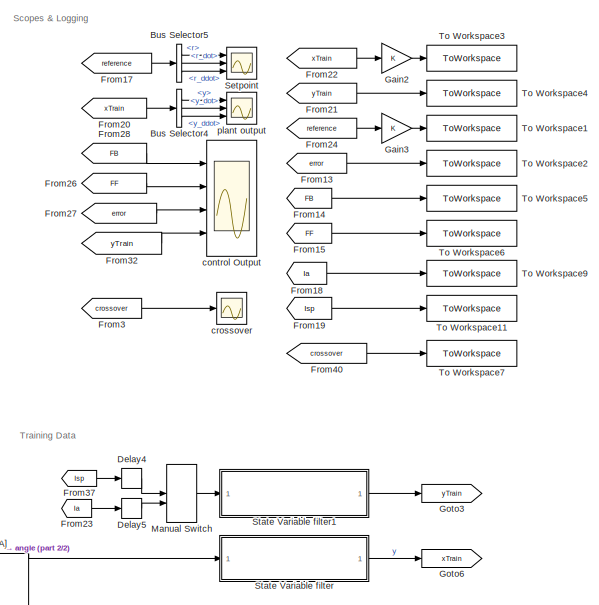
[diagram: root canvas - part 1/2, right side, full height]
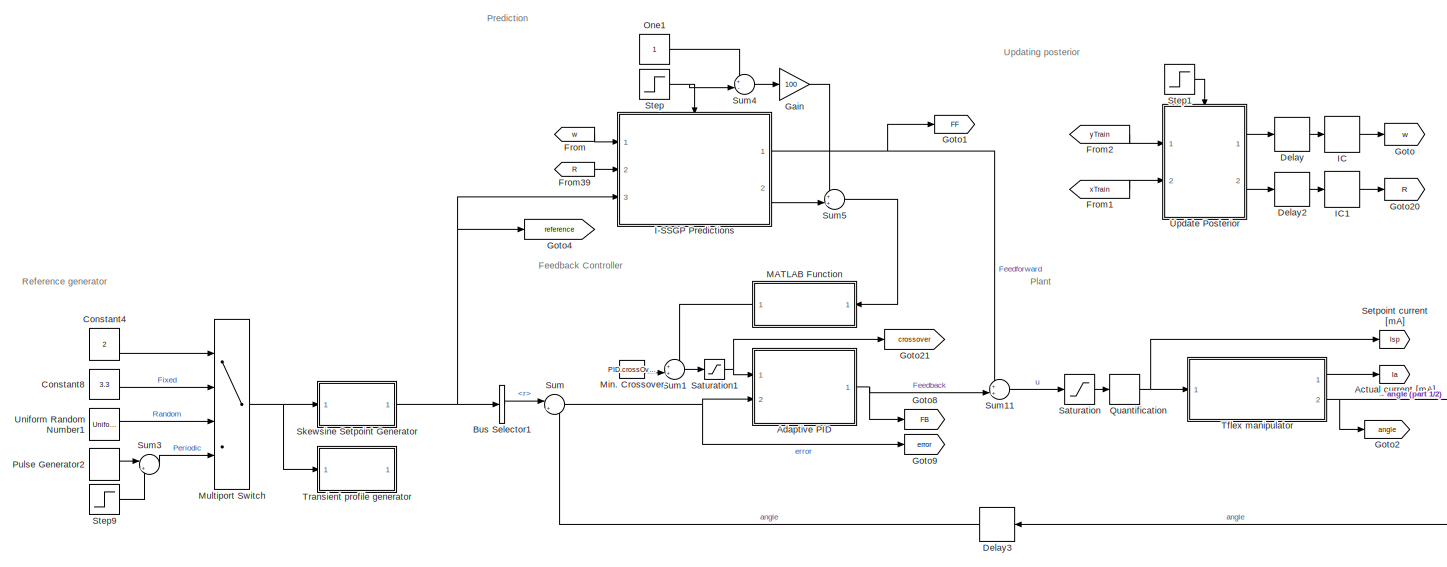
[diagram: root canvas - part 2/2, center side, full height]
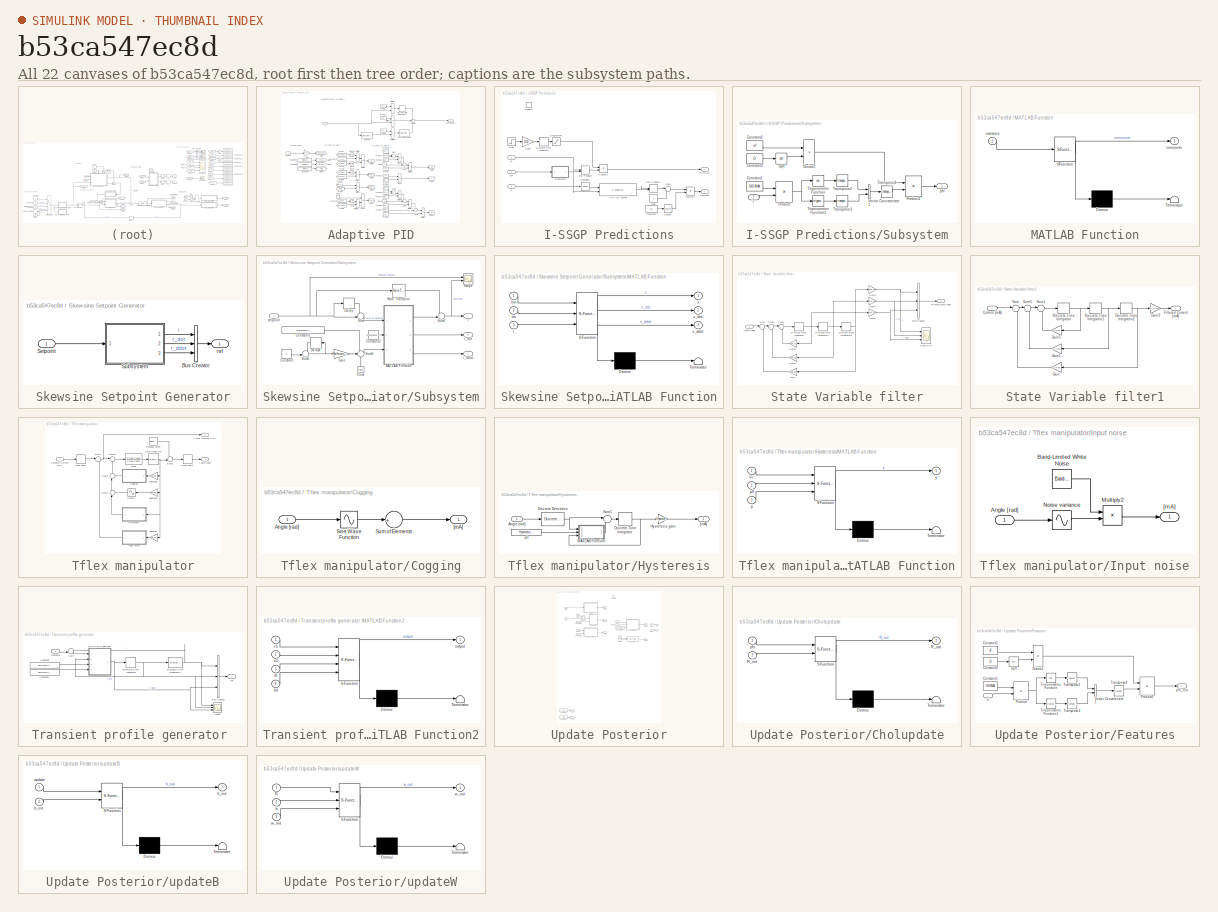
[diagram: thumbnail index - all 22 canvases of the model, root first then tree order]
MODEL slx_b53ca547ec8d
KIND model
CONFIG AbsTol = auto
CONFIG EnableMultiTasking = off
CONFIG FixedStep = auto
CONFIG MaxStep = auto
CONFIG MinStep = auto
CONFIG RelTol = 1e-3
CONFIG SampleTimeConstraint = Unconstrained
CONFIG Solver = VariableStepAuto
CONFIG SolverName = VariableStepAuto
CONFIG StartTime = 0.0
CONFIG StopTime = t_end
BLOCK [Goto] Actual current [mA]
  GotoTag = Ia
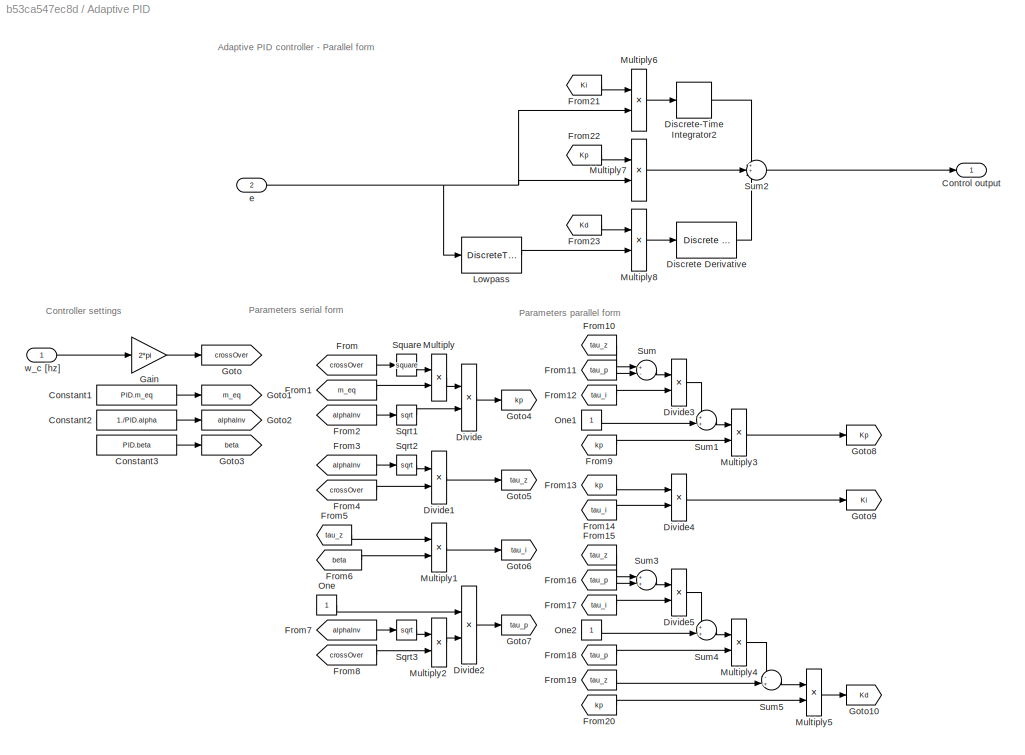
BLOCK [SubSystem] Adaptive PID
  Ports = [2, 1]
  RequestExecContextInheritance = off
BLOCK [Constant] Adaptive PID/Constant1
  Value = PID.m_eq
BLOCK [Constant] Adaptive PID/Constant2
  Value = 1./PID.alpha
BLOCK [Constant] Adaptive PID/Constant3
  Value = PID.beta
BLOCK [Outport] Adaptive PID/Control output
  IconDisplay = Port number
BLOCK [Reference] Adaptive PID/Discrete Derivative  REF=simulink/Discrete/Discrete Derivative
  Ports = [1, 1]
  SourceBlock = simulink/Discrete/Discrete Derivative
  SourceProductBaseCode = SL
  SourceProductName = Simulink
  SourceType = Discrete Derivative
BLOCK [DiscreteIntegrator] Adaptive PID/Discrete-Time Integrator2
  ICPrevOutput = DiscIntNeverNeededParam
  ICPrevScaledInput = DiscIntNeverNeededParam
  InitialConditionSetting = Auto
  Ports = [1, 1]
  SampleTime = -1
BLOCK [Product] Adaptive PID/Divide
  InputSameDT = off
  Inputs = */
  OutDataTypeStr = Inherit: Inherit via internal rule
  Ports = [2, 1]
  RndMeth = Floor
  SaturateOnIntegerOverflow = off
BLOCK [Product] Adaptive PID/Divide1
  InputSameDT = off
  Inputs = */
  OutDataTypeStr = Inherit: Inherit via internal rule
  Ports = [2, 1]
  RndMeth = Floor
  SaturateOnIntegerOverflow = off
BLOCK [Product] Adaptive PID/Divide2
  InputSameDT = off
  Inputs = */
  OutDataTypeStr = Inherit: Inherit via internal rule
  Ports = [2, 1]
  RndMeth = Floor
  SaturateOnIntegerOverflow = off
BLOCK [Product] Adaptive PID/Divide3
  InputSameDT = off
  Inputs = */
  OutDataTypeStr = Inherit: Inherit via internal rule
  Ports = [2, 1]
  RndMeth = Floor
  SaturateOnIntegerOverflow = off
BLOCK [Product] Adaptive PID/Divide4
  InputSameDT = off
  Inputs = */
  OutDataTypeStr = Inherit: Inherit via internal rule
  Ports = [2, 1]
  RndMeth = Floor
  SaturateOnIntegerOverflow = off
BLOCK [Product] Adaptive PID/Divide5
  InputSameDT = off
  Inputs = */
  OutDataTypeStr = Inherit: Inherit via internal rule
  Ports = [2, 1]
  RndMeth = Floor
  SaturateOnIntegerOverflow = off
BLOCK [From] Adaptive PID/From
  GotoTag = crossOver
BLOCK [From] Adaptive PID/From1
  GotoTag = m_eq
BLOCK [From] Adaptive PID/From10
  GotoTag = tau_z
BLOCK [From] Adaptive PID/From11
  GotoTag = tau_p
BLOCK [From] Adaptive PID/From12
  GotoTag = tau_i
BLOCK [From] Adaptive PID/From13
  GotoTag = kp
BLOCK [From] Adaptive PID/From14
  GotoTag = tau_i
BLOCK [From] Adaptive PID/From15
  GotoTag = tau_z
BLOCK [From] Adaptive PID/From16
  GotoTag = tau_p
BLOCK [From] Adaptive PID/From17
  GotoTag = tau_i
BLOCK [From] Adaptive PID/From18
  GotoTag = tau_p
BLOCK [From] Adaptive PID/From19
  GotoTag = tau_z
BLOCK [From] Adaptive PID/From2
  GotoTag = alphaInv
BLOCK [From] Adaptive PID/From20
  GotoTag = kp
BLOCK [From] Adaptive PID/From21
  GotoTag = Ki
BLOCK [From] Adaptive PID/From22
  GotoTag = Kp
BLOCK [From] Adaptive PID/From23
  GotoTag = Kd
BLOCK [From] Adaptive PID/From3
  GotoTag = alphaInv
BLOCK [From] Adaptive PID/From4
  GotoTag = crossOver
BLOCK [From] Adaptive PID/From5
  GotoTag = tau_z
BLOCK [From] Adaptive PID/From6
  GotoTag = beta
BLOCK [From] Adaptive PID/From7
  GotoTag = alphaInv
BLOCK [From] Adaptive PID/From8
  GotoTag = crossOver
BLOCK [From] Adaptive PID/From9
  GotoTag = kp
BLOCK [Gain] Adaptive PID/Gain
  Gain = 2*pi
  OutDataTypeStr = Inherit: Inherit via internal rule
  ParamDataTypeStr = Inherit: Inherit via internal rule
  SaturateOnIntegerOverflow = off
BLOCK [Goto] Adaptive PID/Goto
  GotoTag = crossOver
BLOCK [Goto] Adaptive PID/Goto1
  GotoTag = m_eq
BLOCK [Goto] Adaptive PID/Goto10
  GotoTag = Kd
BLOCK [Goto] Adaptive PID/Goto2
  GotoTag = alphaInv
BLOCK [Goto] Adaptive PID/Goto3
  GotoTag = beta
BLOCK [Goto] Adaptive PID/Goto4
  GotoTag = kp
BLOCK [Goto] Adaptive PID/Goto5
  GotoTag = tau_z
BLOCK [Goto] Adaptive PID/Goto6
  GotoTag = tau_i
BLOCK [Goto] Adaptive PID/Goto7
  GotoTag = tau_p
BLOCK [Goto] Adaptive PID/Goto8
  GotoTag = Kp
BLOCK [Goto] Adaptive PID/Goto9
  GotoTag = Ki
BLOCK [DiscreteTransferFcn] Adaptive PID/Lowpass
  Denominator = PID.LPden
  InputPortMap = u0
  Numerator = PID.LPnum
  Ports = [1, 1]
  SampleTime = ts
BLOCK [Product] Adaptive PID/Multiply
  InputSameDT = off
  OutDataTypeStr = Inherit: Inherit via internal rule
  Ports = [2, 1]
  RndMeth = Floor
  SaturateOnIntegerOverflow = off
BLOCK [Product] Adaptive PID/Multiply1
  InputSameDT = off
  OutDataTypeStr = Inherit: Inherit via internal rule
  Ports = [2, 1]
  RndMeth = Floor
  SaturateOnIntegerOverflow = off
BLOCK [Product] Adaptive PID/Multiply2
  InputSameDT = off
  OutDataTypeStr = Inherit: Inherit via internal rule
  Ports = [2, 1]
  RndMeth = Floor
  SaturateOnIntegerOverflow = off
BLOCK [Product] Adaptive PID/Multiply3
  InputSameDT = off
  OutDataTypeStr = Inherit: Inherit via internal rule
  Ports = [2, 1]
  RndMeth = Floor
  SaturateOnIntegerOverflow = off
BLOCK [Product] Adaptive PID/Multiply4
  InputSameDT = off
  OutDataTypeStr = Inherit: Inherit via internal rule
  Ports = [2, 1]
  RndMeth = Floor
  SaturateOnIntegerOverflow = off
BLOCK [Product] Adaptive PID/Multiply5
  InputSameDT = off
  OutDataTypeStr = Inherit: Inherit via internal rule
  Ports = [2, 1]
  RndMeth = Floor
  SaturateOnIntegerOverflow = off
BLOCK [Product] Adaptive PID/Multiply6
  InputSameDT = off
  OutDataTypeStr = Inherit: Inherit via internal rule
  Ports = [2, 1]
  RndMeth = Floor
  SaturateOnIntegerOverflow = off
BLOCK [Product] Adaptive PID/Multiply7
  InputSameDT = off
  OutDataTypeStr = Inherit: Inherit via internal rule
  Ports = [2, 1]
  RndMeth = Floor
  SaturateOnIntegerOverflow = off
BLOCK [Product] Adaptive PID/Multiply8
  InputSameDT = off
  OutDataTypeStr = Inherit: Inherit via internal rule
  Ports = [2, 1]
  RndMeth = Floor
  SaturateOnIntegerOverflow = off
BLOCK [Constant] Adaptive PID/One
  OutDataTypeStr = Inherit: Inherit via back propagation
BLOCK [Constant] Adaptive PID/One1
  OutDataTypeStr = Inherit: Inherit via back propagation
BLOCK [Constant] Adaptive PID/One2
  OutDataTypeStr = Inherit: Inherit via back propagation
BLOCK [Sqrt] Adaptive PID/Sqrt1
BLOCK [Sqrt] Adaptive PID/Sqrt2
BLOCK [Sqrt] Adaptive PID/Sqrt3
BLOCK [Math] Adaptive PID/Square
  Operator = square
  Ports = [1, 1]
BLOCK [Sum] Adaptive PID/Sum
  IconShape = round
  InputSameDT = off
  Inputs = +-|
  OutDataTypeStr = Inherit: Inherit via internal rule
  Ports = [2, 1]
  SaturateOnIntegerOverflow = off
BLOCK [Sum] Adaptive PID/Sum1
  IconShape = round
  InputSameDT = off
  Inputs = ++|
  OutDataTypeStr = Inherit: Inherit via internal rule
  Ports = [2, 1]
  SaturateOnIntegerOverflow = off
BLOCK [Sum] Adaptive PID/Sum2
  IconShape = round
  InputSameDT = off
  Inputs = 3
  OutDataTypeStr = Inherit: Inherit via internal rule
  Ports = [3, 1]
  SaturateOnIntegerOverflow = off
BLOCK [Sum] Adaptive PID/Sum3
  IconShape = round
  InputSameDT = off
  Inputs = ++|
  OutDataTypeStr = Inherit: Inherit via internal rule
  Ports = [2, 1]
  SaturateOnIntegerOverflow = off
BLOCK [Sum] Adaptive PID/Sum4
  IconShape = round
  InputSameDT = off
  Inputs = ++|
  OutDataTypeStr = Inherit: Inherit via internal rule
  Ports = [2, 1]
  SaturateOnIntegerOverflow = off
BLOCK [Sum] Adaptive PID/Sum5
  IconShape = round
  InputSameDT = off
  Inputs = -+|
  OutDataTypeStr = Inherit: Inherit via internal rule
  Ports = [2, 1]
  SaturateOnIntegerOverflow = off
BLOCK [Inport] Adaptive PID/e
  IconDisplay = Port number
  Port = 2
BLOCK [Inport] Adaptive PID/w_c [hz]
  IconDisplay = Port number
BLOCK [BusSelector] Bus Selector1
  OutputAsBus = off
  OutputSignals = r
  Ports = [1, 1]
BLOCK [BusSelector] Bus Selector4
  OutputAsBus = off
  OutputSignals = y,y_dot,y_ddot
  Ports = [1, 3]
BLOCK [BusSelector] Bus Selector5
  OutputAsBus = off
  OutputSignals = r,r_dot,r_ddot
  Ports = [1, 3]
BLOCK [Constant] Constant4
  SampleTime = Reference.ts
  Value = 2
BLOCK [Constant] Constant8
  SampleTime = Reference.ts
  Value = 3.3
BLOCK [Delay] Delay
  DelayLength = 1
  InitialCondition = 0
  InputPortMap = u0
  Ports = [1, 1]
BLOCK [Delay] Delay2
  DelayLength = 1
  InitialCondition = 0
  InputPortMap = u0
  Ports = [1, 1]
BLOCK [Delay] Delay3
  DelayLength = 1
  InitialCondition = 0
  InputPortMap = u0
  Ports = [1, 1]
BLOCK [Delay] Delay4
  InputPortMap = u0
  Ports = [1, 1]
BLOCK [Delay] Delay5
  DelayLength = 1
  InputPortMap = u0
  Ports = [1, 1]
BLOCK [From] From
  GotoTag = w
BLOCK [From] From1
  GotoTag = xTrain
BLOCK [From] From13
  GotoTag = error
BLOCK [From] From14
  GotoTag = FB
BLOCK [From] From15
  GotoTag = FF
BLOCK [From] From17
  GotoTag = reference
BLOCK [From] From18
  GotoTag = Ia
BLOCK [From] From19
  GotoTag = Isp
BLOCK [From] From2
  GotoTag = yTrain
BLOCK [From] From20
  GotoTag = xTrain
BLOCK [From] From21
  GotoTag = yTrain
BLOCK [From] From22
  GotoTag = xTrain
BLOCK [From] From23
  GotoTag = Ia
BLOCK [From] From24
  GotoTag = reference
BLOCK [From] From26
  GotoTag = FF
BLOCK [From] From27
  GotoTag = error
BLOCK [From] From28
  GotoTag = FB
BLOCK [From] From3
  GotoTag = crossover
BLOCK [From] From32
  GotoTag = yTrain
BLOCK [From] From37
  GotoTag = Isp
BLOCK [From] From39
  GotoTag = R
BLOCK [From] From40
  GotoTag = crossover
BLOCK [Gain] Gain
  Gain = 100
  OutDataTypeStr = Inherit: Inherit via internal rule
  ParamDataTypeStr = Inherit: Inherit via internal rule
  SaturateOnIntegerOverflow = off
BLOCK [Gain] Gain2
  OutDataTypeStr = Inherit: Inherit via internal rule
  ParamDataTypeStr = Inherit: Inherit via internal rule
  SaturateOnIntegerOverflow = off
BLOCK [Gain] Gain3
  OutDataTypeStr = Inherit: Inherit via internal rule
  ParamDataTypeStr = Inherit: Inherit via internal rule
  SaturateOnIntegerOverflow = off
BLOCK [Goto] Goto
  GotoTag = w
BLOCK [Goto] Goto1
  GotoTag = FF
BLOCK [Goto] Goto2
  GotoTag = angle
BLOCK [Goto] Goto20
  GotoTag = R
BLOCK [Goto] Goto21
  GotoTag = crossover
BLOCK [Goto] Goto3
  GotoTag = yTrain
BLOCK [Goto] Goto4
  GotoTag = reference
BLOCK [Goto] Goto6
  GotoTag = xTrain
BLOCK [Goto] Goto8
  GotoTag = FB
BLOCK [Goto] Goto9
  GotoTag = error
BLOCK [SubSystem] I-SSGP Predictions
  Ports = [3, 2, 1]
  RequestExecContextInheritance = off
BLOCK [Constant] I-SSGP Predictions/Constant3
  SampleTime = -1
  Value = sn
BLOCK [DiscreteIntegrator] I-SSGP Predictions/Discrete-Time Integrator
  ICPrevOutput = DiscIntNeverNeededParam
  ICPrevScaledInput = DiscIntNeverNeededParam
  InitialConditionSetting = Auto
  Ports = [1, 1]
  SampleTime = -1
BLOCK [DotProduct] I-SSGP Predictions/Dot Product
  InputSameDT = off
  OutDataTypeStr = Inherit: Inherit via internal rule
BLOCK [DotProduct] I-SSGP Predictions/Dot Product1
  InputSameDT = off
  OutDataTypeStr = Inherit: Inherit via internal rule
BLOCK [EnablePort] I-SSGP Predictions/Enable
  Ports = []
BLOCK [Outport] I-SSGP Predictions/FF_SSGP
  IconDisplay = Port number
  SampleTime = ts
BLOCK [S-Function] I-SSGP Predictions/LAPACK solver
  EnableBusSupport = off
  FunctionName = solve_lowerTriangular_sfun
  Parameters = 2*D
  Ports = [2, 1]
  SFcnIsStateOwnerBlock = off
  SFunctionDeploymentMode = off
BLOCK [Product] I-SSGP Predictions/Multiply
  InputSameDT = off
  OutDataTypeStr = Inherit: Inherit via internal rule
  Ports = [2, 1]
  RndMeth = Floor
  SaturateOnIntegerOverflow = off
BLOCK [Constant] I-SSGP Predictions/One
  OutDataTypeStr = Inherit: Inherit via back propagation
BLOCK [Product] I-SSGP Predictions/Product1
  InputSameDT = off
  OutDataTypeStr = Inherit: Inherit via internal rule
  Ports = [2, 1]
  RndMeth = Floor
  SaturateOnIntegerOverflow = off
BLOCK [Inport] I-SSGP Predictions/R
  IconDisplay = Port number
  Port = 2
BLOCK [Saturate] I-SSGP Predictions/Saturation1
  InputPortMap = u0
  LowerLimit = 0
  Ports = [1, 1]
  UpperLimit = 1
BLOCK [Math] I-SSGP Predictions/Square
  Operator = square
  Ports = [1, 1]
BLOCK [Step] I-SSGP Predictions/Step
  SampleTime = ts
  Time = t_predict
BLOCK [SubSystem] I-SSGP Predictions/Subsystem
  Ports = [1, 1]
  RequestExecContextInheritance = off
BLOCK [Constant] I-SSGP Predictions/Subsystem/Constant1
  SampleTime = -1
  Value = SIGMA
BLOCK [Constant] I-SSGP Predictions/Subsystem/Constant2
  SampleTime = -1
  Value = sf
BLOCK [Constant] I-SSGP Predictions/Subsystem/Constant3
  SampleTime = -1
  Value = D
BLOCK [Product] I-SSGP Predictions/Subsystem/Divide2
  InputSameDT = off
  Inputs = */
  OutDataTypeStr = Inherit: Inherit via internal rule
  Ports = [2, 1]
  RndMeth = Floor
  SaturateOnIntegerOverflow = off
BLOCK [Product] I-SSGP Predictions/Subsystem/Product
  InputSameDT = off
  Multiplication = Matrix(*)
  OutDataTypeStr = Inherit: Inherit via internal rule
  Ports = [2, 1]
  RndMeth = Floor
  SaturateOnIntegerOverflow = off
BLOCK [Product] I-SSGP Predictions/Subsystem/Product2
  InputSameDT = off
  OutDataTypeStr = Inherit: Inherit via internal rule
  Ports = [2, 1]
  RndMeth = Floor
  SaturateOnIntegerOverflow = off
BLOCK [Sqrt] I-SSGP Predictions/Subsystem/Sqrt
BLOCK [Math] I-SSGP Predictions/Subsystem/Transpose2
  Operator = transpose
  Ports = [1, 1]
BLOCK [Math] I-SSGP Predictions/Subsystem/Transpose3
  Operator = transpose
  Ports = [1, 1]
BLOCK [Math] I-SSGP Predictions/Subsystem/Transpose4
  Operator = transpose
  Ports = [1, 1]
BLOCK [Trigonometry] I-SSGP Predictions/Subsystem/Trigonometric Function
  Operator = cos
  Ports = [1, 1]
BLOCK [Trigonometry] I-SSGP Predictions/Subsystem/Trigonometric Function1
  Ports = [1, 1]
BLOCK [Concatenate] I-SSGP Predictions/Subsystem/Vector Concatenate1
  Ports = [2, 1]
BLOCK [Outport] I-SSGP Predictions/Subsystem/phi
  IconDisplay = Port number
BLOCK [Inport] I-SSGP Predictions/Subsystem/r
  IconDisplay = Port number
BLOCK [Sum] I-SSGP Predictions/Sum
  IconShape = round
  InputSameDT = off
  Inputs = |++
  OutDataTypeStr = Inherit: Inherit via internal rule
  Ports = [2, 1]
  SaturateOnIntegerOverflow = off
BLOCK [Math] I-SSGP Predictions/Transpose
  Operator = transpose
  Ports = [1, 1]
BLOCK [Outport] I-SSGP Predictions/Variance
  IconDisplay = Port number
  Port = 2
  SampleTime = ts
BLOCK [Inport] I-SSGP Predictions/ref
  IconDisplay = Port number
  Port = 3
BLOCK [Gain] I-SSGP Predictions/slope
  Gain = 1/10
  OutDataTypeStr = Inherit: Inherit via internal rule
  ParamDataTypeStr = Inherit: Inherit via internal rule
  SaturateOnIntegerOverflow = off
BLOCK [Inport] I-SSGP Predictions/w
  IconDisplay = Port number
BLOCK [InitialCondition] IC
  Value = w_init
BLOCK [InitialCondition] IC1
  Value = R_init
BLOCK [SubSystem] MATLAB Function
  ErrorFcn = Stateflow.Translate.translate
  PermitHierarchicalResolution = ExplicitOnly
  Ports = [1, 1]
  RequestExecContextInheritance = off
  SFBlockType = MATLAB Function
  TreatAsAtomicUnit = on
BLOCK [Demux] MATLAB Function/ Demux 
  Outputs = 1
  Ports = [1, 1]
BLOCK [S-Function] MATLAB Function/ SFunction 
  EnableBusSupport = on
  FunctionName = sf_sfun
  Parameters = PID,sn
  PortCounts = [1 2]
  Ports = [1, 2]
  SFcnIsStateOwnerBlock = off
  SFunctionDeploymentMode = off
  Tag = Stateflow S-Function TFlex_ISSGPcopy 9
BLOCK [Terminator] MATLAB Function/ Terminator 
BLOCK [Outport] MATLAB Function/crossover
  IconDisplay = Port number
BLOCK [Inport] MATLAB Function/variance
  IconDisplay = Port number
BLOCK [ManualSwitch] Manual Switch
BLOCK [Constant] Min. Crossover
  OutDataTypeStr = Inherit: Inherit via back propagation
  Value = PID.crossOver/(2*pi)
BLOCK [MultiPortSwitch] Multiport Switch
  InputSameDT = off
  Ports = [4, 1]
  SaturateOnIntegerOverflow = off
BLOCK [Constant] One1
  OutDataTypeStr = Inherit: Inherit via back propagation
BLOCK [DiscretePulseGenerator] Pulse Generator2
  Amplitude = 2*10
  Ports = [0, 1]
  SampleTime = Reference.ts
BLOCK [Quantizer] Quantification
  QuantizationInterval = 1
BLOCK [Saturate] Saturation
  InputPortMap = u0
  LowerLimit = -I_limit
  Ports = [1, 1]
  UpperLimit = I_limit
BLOCK [Saturate] Saturation1
  InputPortMap = u0
  LowerLimit = 0
  Ports = [1, 1]
  UpperLimit = 20
BLOCK [Scope] Setpoint
  Floating = off
  NumInputPorts = 3
  Ports = [3]
  ScopeSpecificationString = Simulink.scopes.TimeScopeBlockCfg('CurrentConfiguration', extmgr.ConfigurationSet(extmgr.Configuration('Core','General UI',true),extmgr.Configuration('Core','Source UI',true),extmgr.Configuration('Sources','WiredSimulink',true,'DataLoggingVariableName','ScopeData3','DataLoggingSaveFormat','StructureWithTime'),extmgr.Configuration('Visuals','Time Domain',true,'SerializedDisplays',{struct('MinYLimRe...<+2753ch>
BLOCK [Goto] Setpoint current [mA]
  GotoTag = Isp
BLOCK [SubSystem] Skewsine Setpoint Generator
  Ports = [1, 1]
  RequestExecContextInheritance = off
BLOCK [BusCreator] Skewsine Setpoint Generator/Bus Creator
  DisplayOption = bar
  InheritFromInputs = on
  Inputs = 3
  Ports = [3, 1]
BLOCK [Inport] Skewsine Setpoint Generator/Setpoint
  IconDisplay = Port number
BLOCK [SubSystem] Skewsine Setpoint Generator/Subsystem
  Ports = [1, 3]
  RequestExecContextInheritance = off
BLOCK [Clock] Skewsine Setpoint Generator/Subsystem/Clock
  Decimation = 100
BLOCK [Constant] Skewsine Setpoint Generator/Subsystem/Constant
  SampleTime = Reference.ts
BLOCK [Constant] Skewsine Setpoint Generator/Subsystem/Constant1
  SampleTime = Reference.ts
  Value = Reference.ts
BLOCK [Constant] Skewsine Setpoint Generator/Subsystem/Constant2
  SampleTime = Reference.ts
  Value = Reference.skewSine.tm
BLOCK [Delay] Skewsine Setpoint Generator/Subsystem/Delay
  DelayLength = 1
  InitialCondition = 0
  InputPortMap = u0
  Ports = [1, 1]
  SampleTime = Reference.ts
BLOCK [Delay] Skewsine Setpoint Generator/Subsystem/Delay4
  DelayLength = 1
  InitialCondition = 0
  InputPortMap = u0
  Ports = [1, 1]
  SampleTime = Reference.ts
BLOCK [Gain] Skewsine Setpoint Generator/Subsystem/Gain
  Gain = Reference.ts
  OutDataTypeStr = Inherit: Inherit via internal rule
  ParamDataTypeStr = Inherit: Inherit via internal rule
  SaturateOnIntegerOverflow = off
BLOCK [SubSystem] Skewsine Setpoint Generator/Subsystem/MATLAB Function
  ErrorFcn = Stateflow.Translate.translate
  PermitHierarchicalResolution = ExplicitOnly
  Ports = [3, 3]
  RequestExecContextInheritance = off
  SFBlockType = MATLAB Function
  TreatAsAtomicUnit = on
BLOCK [Demux] Skewsine Setpoint Generator/Subsystem/MATLAB Function/ Demux 
  Outputs = 1
  Ports = [1, 1]
BLOCK [S-Function] Skewsine Setpoint Generator/Subsystem/MATLAB Function/ SFunction 
  EnableBusSupport = on
  FunctionName = sf_sfun
  PortCounts = [3 4]
  Ports = [3, 4]
  SFcnIsStateOwnerBlock = off
  SFunctionDeploymentMode = off
  Tag = Stateflow S-Function TFlex_ISSGPcopy 2
BLOCK [Terminator] Skewsine Setpoint Generator/Subsystem/MATLAB Function/ Terminator 
BLOCK [Inport] Skewsine Setpoint Generator/Subsystem/MATLAB Function/hm
  IconDisplay = Port number
BLOCK [Inport] Skewsine Setpoint Generator/Subsystem/MATLAB Function/t
  IconDisplay = Port number
  Port = 3
BLOCK [Inport] Skewsine Setpoint Generator/Subsystem/MATLAB Function/tm
  IconDisplay = Port number
  Port = 2
BLOCK [Outport] Skewsine Setpoint Generator/Subsystem/MATLAB Function/x
  IconDisplay = Port number
BLOCK [Outport] Skewsine Setpoint Generator/Subsystem/MATLAB Function/x_ddot
  IconDisplay = Port number
  Port = 3
BLOCK [Outport] Skewsine Setpoint Generator/Subsystem/MATLAB Function/x_dot
  IconDisplay = Port number
  Port = 2
BLOCK [RateTransition] Skewsine Setpoint Generator/Subsystem/Rate Transition
  OutPortSampleTime = ts
BLOCK [Scope] Skewsine Setpoint Generator/Subsystem/Scope
  Floating = off
  NumInputPorts = 2
  Ports = [2]
  ScopeSpecificationString = Simulink.scopes.TimeScopeBlockCfg('CurrentConfiguration', extmgr.ConfigurationSet(extmgr.Configuration('Core','General UI',true),extmgr.Configuration('Core','Source UI',true),extmgr.Configuration('Sources','WiredSimulink',true,'DataLoggingVariableName','ScopeData2'),extmgr.Configuration('Visuals','Time Domain',true,'SerializedDisplays',{struct('MinYLimReal','-28.49581','MaxYLimReal','28.63849','YL...<+1469ch>
BLOCK [Sum] Skewsine Setpoint Generator/Subsystem/Sum
  IconShape = round
  InputSameDT = off
  Inputs = -+|
  OutDataTypeStr = Inherit: Inherit via internal rule
  Ports = [2, 1]
  SaturateOnIntegerOverflow = off
BLOCK [Sum] Skewsine Setpoint Generator/Subsystem/Sum2
  IconShape = round
  InputSameDT = off
  Inputs = ++|
  OutDataTypeStr = Inherit: Inherit via internal rule
  Ports = [2, 1]
  SaturateOnIntegerOverflow = off
BLOCK [Sum] Skewsine Setpoint Generator/Subsystem/Sum5
  IconShape = round
  InputSameDT = off
  Inputs = ++|
  OutDataTypeStr = Inherit: Inherit via internal rule
  Ports = [2, 1]
  SaturateOnIntegerOverflow = off
BLOCK [Sum] Skewsine Setpoint Generator/Subsystem/Sum6
  IconShape = round
  InputSameDT = off
  Inputs = +-+
  OutDataTypeStr = Inherit: Inherit via internal rule
  Ports = [3, 1]
  SaturateOnIntegerOverflow = off
BLOCK [Outport] Skewsine Setpoint Generator/Subsystem/r
  IconDisplay = Port number
BLOCK [Outport] Skewsine Setpoint Generator/Subsystem/r_ddot
  IconDisplay = Port number
  Port = 3
BLOCK [Outport] Skewsine Setpoint Generator/Subsystem/r_dot
  IconDisplay = Port number
  Port = 2
BLOCK [Inport] Skewsine Setpoint Generator/Subsystem/setpoint
  IconDisplay = Port number
BLOCK [Outport] Skewsine Setpoint Generator/ref
  IconDisplay = Port number
BLOCK [SubSystem] State Variable filter
  Ports = [1, 1]
  RequestExecContextInheritance = off
BLOCK [Inport] State Variable filter/Angle [deg]
  IconDisplay = Port number
BLOCK [BusCreator] State Variable filter/Bus Creator
  DisplayOption = bar
  InheritFromInputs = on
  Inputs = 3
  Ports = [3, 1]
BLOCK [DiscreteIntegrator] State Variable filter/Discrete-Time Integrator
  ICPrevOutput = DiscIntNeverNeededParam
  ICPrevScaledInput = DiscIntNeverNeededParam
  InitialConditionSetting = Auto
  Ports = [1, 1]
  SampleTime = -1
BLOCK [DiscreteIntegrator] State Variable filter/Discrete-Time Integrator1
  ICPrevOutput = DiscIntNeverNeededParam
  ICPrevScaledInput = DiscIntNeverNeededParam
  InitialConditionSetting = Auto
  Ports = [1, 1]
  SampleTime = -1
BLOCK [DiscreteIntegrator] State Variable filter/Discrete-Time Integrator2
  ICPrevOutput = DiscIntNeverNeededParam
  ICPrevScaledInput = DiscIntNeverNeededParam
  InitialConditionSetting = Auto
  Ports = [1, 1]
  SampleTime = -1
BLOCK [Outport] State Variable filter/Filtered state [deg]
  IconDisplay = Port number
  SampleTime = ts
BLOCK [Gain] State Variable filter/Gain
  Gain = SVF.a0
  OutDataTypeStr = Inherit: Inherit via internal rule
  ParamDataTypeStr = Inherit: Inherit via internal rule
  SaturateOnIntegerOverflow = off
BLOCK [Gain] State Variable filter/Gain1
  Gain = SVF.a1
  OutDataTypeStr = Inherit: Inherit via internal rule
  ParamDataTypeStr = Inherit: Inherit via internal rule
  SaturateOnIntegerOverflow = off
BLOCK [Gain] State Variable filter/Gain2
  Gain = SVF.a0
  OutDataTypeStr = Inherit: Inherit via internal rule
  ParamDataTypeStr = Inherit: Inherit via internal rule
  SaturateOnIntegerOverflow = off
BLOCK [Gain] State Variable filter/Gain3
  Gain = SVF.a0
  OutDataTypeStr = Inherit: Inherit via internal rule
  ParamDataTypeStr = Inherit: Inherit via internal rule
  SaturateOnIntegerOverflow = off
BLOCK [Gain] State Variable filter/Gain4
  Gain = SVF.a0
  OutDataTypeStr = Inherit: Inherit via internal rule
  ParamDataTypeStr = Inherit: Inherit via internal rule
  SaturateOnIntegerOverflow = off
BLOCK [Gain] State Variable filter/Gain5
  Gain = SVF.a2
  OutDataTypeStr = Inherit: Inherit via internal rule
  ParamDataTypeStr = Inherit: Inherit via internal rule
  SaturateOnIntegerOverflow = off
BLOCK [Scope] State Variable filter/State SVF
  Floating = off
  NumInputPorts = 3
  Ports = [3]
  ScopeSpecificationString = Simulink.scopes.TimeScopeBlockCfg('CurrentConfiguration', extmgr.ConfigurationSet(extmgr.Configuration('Core','General UI',true),extmgr.Configuration('Core','Source UI',true),extmgr.Configuration('Sources','WiredSimulink',true,'DataLoggingVariableName','ScopeData2','DataLoggingSaveFormat','StructureWithTime'),extmgr.Configuration('Visuals','Time Domain',true,'SerializedDisplays',{struct('MinYLimRe...<+2766ch>
BLOCK [Sum] State Variable filter/Sum
  IconShape = round
  InputSameDT = off
  Inputs = |+-
  OutDataTypeStr = Inherit: Inherit via internal rule
  Ports = [2, 1]
  SaturateOnIntegerOverflow = off
BLOCK [Sum] State Variable filter/Sum1
  IconShape = round
  InputSameDT = off
  Inputs = |+-
  OutDataTypeStr = Inherit: Inherit via internal rule
  Ports = [2, 1]
  SaturateOnIntegerOverflow = off
BLOCK [Sum] State Variable filter/Sum5
  IconShape = round
  InputSameDT = off
  Inputs = |+-
  OutDataTypeStr = Inherit: Inherit via internal rule
  Ports = [2, 1]
  SaturateOnIntegerOverflow = off
BLOCK [SubSystem] State Variable filter1
  Ports = [1, 1]
  RequestExecContextInheritance = off
BLOCK [Inport] State Variable filter1/Current [mA]
  IconDisplay = Port number
BLOCK [DiscreteIntegrator] State Variable filter1/Discrete-Time Integrator
  ICPrevOutput = DiscIntNeverNeededParam
  ICPrevScaledInput = DiscIntNeverNeededParam
  InitialConditionSetting = Auto
  Ports = [1, 1]
  SampleTime = -1
BLOCK [DiscreteIntegrator] State Variable filter1/Discrete-Time Integrator1
  ICPrevOutput = DiscIntNeverNeededParam
  ICPrevScaledInput = DiscIntNeverNeededParam
  InitialConditionSetting = Auto
  Ports = [1, 1]
  SampleTime = -1
BLOCK [DiscreteIntegrator] State Variable filter1/Discrete-Time Integrator2
  ICPrevOutput = DiscIntNeverNeededParam
  ICPrevScaledInput = DiscIntNeverNeededParam
  InitialConditionSetting = Auto
  Ports = [1, 1]
  SampleTime = -1
BLOCK [Outport] State Variable filter1/Filtered Current [mA]
  IconDisplay = Port number
  SampleTime = ts
BLOCK [Gain] State Variable filter1/Gain
  Gain = SVF.a0
  OutDataTypeStr = Inherit: Inherit via internal rule
  ParamDataTypeStr = Inherit: Inherit via internal rule
  SaturateOnIntegerOverflow = off
BLOCK [Gain] State Variable filter1/Gain1
  Gain = SVF.a1
  OutDataTypeStr = Inherit: Inherit via internal rule
  ParamDataTypeStr = Inherit: Inherit via internal rule
  SaturateOnIntegerOverflow = off
BLOCK [Gain] State Variable filter1/Gain3
  Gain = SVF.a0
  OutDataTypeStr = Inherit: Inherit via internal rule
  ParamDataTypeStr = Inherit: Inherit via internal rule
  SaturateOnIntegerOverflow = off
BLOCK [Gain] State Variable filter1/Gain5
  Gain = SVF.a2
  OutDataTypeStr = Inherit: Inherit via internal rule
  ParamDataTypeStr = Inherit: Inherit via internal rule
  SaturateOnIntegerOverflow = off
BLOCK [Sum] State Variable filter1/Sum
  IconShape = round
  InputSameDT = off
  Inputs = |+-
  OutDataTypeStr = Inherit: Inherit via internal rule
  Ports = [2, 1]
  SaturateOnIntegerOverflow = off
BLOCK [Sum] State Variable filter1/Sum1
  IconShape = round
  InputSameDT = off
  Inputs = |+-
  OutDataTypeStr = Inherit: Inherit via internal rule
  Ports = [2, 1]
  SaturateOnIntegerOverflow = off
BLOCK [Sum] State Variable filter1/Sum5
  IconShape = round
  InputSameDT = off
  Inputs = |+-
  OutDataTypeStr = Inherit: Inherit via internal rule
  Ports = [2, 1]
  SaturateOnIntegerOverflow = off
BLOCK [Step] Step
  SampleTime = ts
  Time = t_predict
BLOCK [Step] Step1
  SampleTime = ts
  Time = t_learn
BLOCK [Step] Step9
  After = -10
  SampleTime = Reference.ts
  Time = 0
BLOCK [Sum] Sum
  IconShape = round
  InputSameDT = off
  Inputs = |+-
  OutDataTypeStr = Inherit: Inherit via internal rule
  Ports = [2, 1]
  SaturateOnIntegerOverflow = off
BLOCK [Sum] Sum1
  IconShape = round
  InputSameDT = off
  Inputs = ++|
  OutDataTypeStr = Inherit: Inherit via internal rule
  Ports = [2, 1]
  SaturateOnIntegerOverflow = off
BLOCK [Sum] Sum11
  IconShape = round
  InputSameDT = off
  Inputs = ++|
  OutDataTypeStr = Inherit: Inherit via internal rule
  Ports = [2, 1]
  SaturateOnIntegerOverflow = off
BLOCK [Sum] Sum3
  IconShape = round
  InputSameDT = off
  Inputs = |++
  OutDataTypeStr = Inherit: Inherit via internal rule
  Ports = [2, 1]
  SaturateOnIntegerOverflow = off
BLOCK [Sum] Sum4
  IconShape = round
  InputSameDT = off
  Inputs = +-|
  OutDataTypeStr = Inherit: Inherit via internal rule
  Ports = [2, 1]
  SaturateOnIntegerOverflow = off
BLOCK [Sum] Sum5
  IconShape = round
  InputSameDT = off
  Inputs = ++|
  OutDataTypeStr = Inherit: Inherit via internal rule
  Ports = [2, 1]
  SaturateOnIntegerOverflow = off
BLOCK [SubSystem] Tflex manipulator
  Ports = [1, 2]
  RequestExecContextInheritance = off
BLOCK [Outport] Tflex manipulator/Actual Current [mA]
  IconDisplay = Port number
BLOCK [Outport] Tflex manipulator/Angle [deg]
  IconDisplay = Port number
  Port = 2
BLOCK [SubSystem] Tflex manipulator/Cogging
  Ports = [1, 1]
  RequestExecContextInheritance = off
BLOCK [Inport] Tflex manipulator/Cogging/Angle [rad]
  IconDisplay = Port number
BLOCK [Sin] Tflex manipulator/Cogging/Sine Wave Function
  Amplitude = Cogging.amplitude
  Frequency = Cogging.frequency*pi
  Phase = Cogging.phase
  Ports = [1, 1]
  SampleTime = 0
  TimeSource = Use external signal
BLOCK [Sum] Tflex manipulator/Cogging/Sum of Elements
  InputSameDT = off
  Inputs = +
  OutDataTypeStr = Inherit: Inherit via internal rule
  Ports = [1, 1]
  SaturateOnIntegerOverflow = off
BLOCK [Outport] Tflex manipulator/Cogging/[mA]
  IconDisplay = Port number
BLOCK [Reference] Tflex manipulator/Encoder noise  REF=simulink/Sources/Band-Limited
White Noise
  Ports = [0, 1]
  SourceBlock = simulink/Sources/Band-Limited\nWhite Noise
  SourceProductBaseCode = SL
  SourceProductName = Simulink
  SourceType = Band-Limited White Noise.
BLOCK [Sin] Tflex manipulator/Gravity
  Amplitude = gravity.constant
  Phase = gravity.phase
  Ports = [1, 1]
  SampleTime = 0
  TimeSource = Use external signal
BLOCK [SubSystem] Tflex manipulator/Hysteresis
  Ports = [1, 1]
  RequestExecContextInheritance = off
BLOCK [Inport] Tflex manipulator/Hysteresis/Angle [rad]
  IconDisplay = Port number
BLOCK [Reference] Tflex manipulator/Hysteresis/Discrete Derivative  REF=simulink/Discrete/Discrete Derivative
  Ports = [1, 1]
  SourceBlock = simulink/Discrete/Discrete Derivative
  SourceProductBaseCode = SL
  SourceProductName = Simulink
  SourceType = Discrete Derivative
BLOCK [DiscreteIntegrator] Tflex manipulator/Hysteresis/Discrete-Time Integrator
  ICPrevOutput = DiscIntNeverNeededParam
  ICPrevScaledInput = DiscIntNeverNeededParam
  InitialConditionSetting = Auto
  Ports = [1, 1]
  SampleTime = -1
BLOCK [Gain] Tflex manipulator/Hysteresis/Hysteresis.gain
  Gain = Hysteresis.gain
  OutDataTypeStr = Inherit: Inherit via internal rule
  ParamDataTypeStr = Inherit: Inherit via internal rule
  SaturateOnIntegerOverflow = off
BLOCK [SubSystem] Tflex manipulator/Hysteresis/MATLAB Function
  ErrorFcn = Stateflow.Translate.translate
  PermitHierarchicalResolution = ExplicitOnly
  Ports = [3, 1]
  RequestExecContextInheritance = off
  SFBlockType = MATLAB Function
  TreatAsAtomicUnit = on
BLOCK [Demux] Tflex manipulator/Hysteresis/MATLAB Function/ Demux 
  Outputs = 1
  Ports = [1, 1]
BLOCK [S-Function] Tflex manipulator/Hysteresis/MATLAB Function/ SFunction 
  EnableBusSupport = on
  FunctionName = sf_sfun
  PortCounts = [3 2]
  Ports = [3, 2]
  SFcnIsStateOwnerBlock = off
  SFunctionDeploymentMode = off
  Tag = Stateflow S-Function TFlex_ISSGPcopy 5
BLOCK [Terminator] Tflex manipulator/Hysteresis/MATLAB Function/ Terminator 
BLOCK [Inport] Tflex manipulator/Hysteresis/MATLAB Function/Vr
  IconDisplay = Port number
BLOCK [Inport] Tflex manipulator/Hysteresis/MATLAB Function/p
  IconDisplay = Port number
  Port = 3
BLOCK [Inport] Tflex manipulator/Hysteresis/MATLAB Function/p0
  IconDisplay = Port number
  Port = 2
BLOCK [Outport] Tflex manipulator/Hysteresis/MATLAB Function/y
  IconDisplay = Port number
BLOCK [Sum] Tflex manipulator/Hysteresis/Sum1
  IconShape = round
  InputSameDT = off
  Inputs = |+-
  OutDataTypeStr = Inherit: Inherit via internal rule
  Ports = [2, 1]
  SaturateOnIntegerOverflow = off
BLOCK [Outport] Tflex manipulator/Hysteresis/[mA]
  IconDisplay = Port number
BLOCK [Constant] Tflex manipulator/Hysteresis/p0
  Value = Hysteresis.p0
BLOCK [Delay] Tflex manipulator/Input delay
  DelayLength = 1
  InitialCondition = 0
  InputPortMap = u0
  Ports = [1, 1]
BLOCK [SubSystem] Tflex manipulator/Input noise
  Ports = [1, 1]
  RequestExecContextInheritance = off
BLOCK [Inport] Tflex manipulator/Input noise/Angle [rad]
  IconDisplay = Port number
BLOCK [Reference] Tflex manipulator/Input noise/Band-Limited White Noise  REF=simulink/Sources/Band-Limited
White Noise
  Ports = [0, 1]
  SourceBlock = simulink/Sources/Band-Limited\nWhite Noise
  SourceProductBaseCode = SL
  SourceProductName = Simulink
  SourceType = Band-Limited White Noise.
BLOCK [Product] Tflex manipulator/Input noise/Multiply2
  InputSameDT = off
  OutDataTypeStr = Inherit: Inherit via internal rule
  Ports = [2, 1]
  RndMeth = Floor
  SaturateOnIntegerOverflow = off
BLOCK [Sin] Tflex manipulator/Input noise/Noise variance
  Bias = 2
  Frequency = 27.7
  Ports = [1, 1]
  SampleTime = 0
  TimeSource = Use external signal
BLOCK [Outport] Tflex manipulator/Input noise/[mA]
  IconDisplay = Port number
BLOCK [Delay] Tflex manipulator/Ouput delay
  DelayLength = 1
  InitialCondition = 0
  InputPortMap = u0
  Ports = [1, 1]
BLOCK [RateTransition] Tflex manipulator/Rate Transition
  OutPortSampleTime = ts
BLOCK [Inport] Tflex manipulator/Setpoint Current [mA]
  IconDisplay = Port number
BLOCK [Sum] Tflex manipulator/Sum10
  IconShape = round
  InputSameDT = off
  Inputs = |+-
  OutDataTypeStr = Inherit: Inherit via internal rule
  Ports = [2, 1]
  SaturateOnIntegerOverflow = off
BLOCK [Sum] Tflex manipulator/Sum12
  IconShape = round
  InputSameDT = off
  Inputs = |+-
  OutDataTypeStr = Inherit: Inherit via internal rule
  Ports = [2, 1]
  SaturateOnIntegerOverflow = off
BLOCK [Sum] Tflex manipulator/Sum6
  IconShape = round
  InputSameDT = off
  Inputs = |+-
  OutDataTypeStr = Inherit: Inherit via internal rule
  Ports = [2, 1]
  SaturateOnIntegerOverflow = off
BLOCK [Sum] Tflex manipulator/Sum7
  IconShape = round
  InputSameDT = off
  Inputs = |++
  OutDataTypeStr = Inherit: Inherit via internal rule
  Ports = [2, 1]
  SaturateOnIntegerOverflow = off
BLOCK [Sum] Tflex manipulator/Sum8
  IconShape = round
  InputSameDT = off
  Inputs = ++|
  OutDataTypeStr = Inherit: Inherit via internal rule
  Ports = [2, 1]
  SaturateOnIntegerOverflow = off
BLOCK [TransferFcn] Tflex manipulator/TFlex
  ContinuousStateAttributes = 'angle'
  Denominator = Plant.Pden
  Numerator = Plant.Pnum
BLOCK [Gain] Tflex manipulator/deg2rad
  Gain = pi/180
  OutDataTypeStr = Inherit: Inherit via internal rule
  ParamDataTypeStr = Inherit: Inherit via internal rule
  SaturateOnIntegerOverflow = off
BLOCK [Gain] Tflex manipulator/deg2rad1
  Gain = pi/180
  OutDataTypeStr = Inherit: Inherit via internal rule
  ParamDataTypeStr = Inherit: Inherit via internal rule
  SaturateOnIntegerOverflow = off
BLOCK [Gain] Tflex manipulator/deg2rad2
  Gain = pi/180
  OutDataTypeStr = Inherit: Inherit via internal rule
  ParamDataTypeStr = Inherit: Inherit via internal rule
  SaturateOnIntegerOverflow = off
BLOCK [ToWorkspace] To Workspace1
  FixptAsFi = on
  MaxDataPoints = inf
  Ports = [1]
  SampleTime = -1
  Save2DSignal = 3-D array (concatenate along third dimension)
  VariableName = reference
BLOCK [ToWorkspace] To Workspace11
  FixptAsFi = on
  MaxDataPoints = inf
  Ports = [1]
  SampleTime = -1
  Save2DSignal = 3-D array (concatenate along third dimension)
  VariableName = Isp
BLOCK [ToWorkspace] To Workspace2
  FixptAsFi = on
  MaxDataPoints = inf
  Ports = [1]
  SampleTime = -1
  Save2DSignal = 3-D array (concatenate along third dimension)
  VariableName = error
BLOCK [ToWorkspace] To Workspace3
  FixptAsFi = on
  MaxDataPoints = inf
  Ports = [1]
  SampleTime = -1
  Save2DSignal = 3-D array (concatenate along third dimension)
  VariableName = xTraining
BLOCK [ToWorkspace] To Workspace4
  FixptAsFi = on
  MaxDataPoints = inf
  Ports = [1]
  SampleTime = -1
  Save2DSignal = 3-D array (concatenate along third dimension)
  VariableName = yTraining
BLOCK [ToWorkspace] To Workspace5
  FixptAsFi = on
  MaxDataPoints = inf
  Ports = [1]
  SampleTime = -1
  Save2DSignal = 3-D array (concatenate along third dimension)
  VariableName = FB
BLOCK [ToWorkspace] To Workspace6
  FixptAsFi = on
  MaxDataPoints = inf
  Ports = [1]
  SampleTime = -1
  Save2DSignal = 3-D array (concatenate along third dimension)
  VariableName = FF
BLOCK [ToWorkspace] To Workspace7
  FixptAsFi = on
  MaxDataPoints = inf
  Ports = [1]
  SampleTime = -1
  Save2DSignal = 3-D array (concatenate along third dimension)
  VariableName = crossover
BLOCK [ToWorkspace] To Workspace9
  FixptAsFi = on
  MaxDataPoints = inf
  Ports = [1]
  SampleTime = -1
  Save2DSignal = 3-D array (concatenate along third dimension)
  VariableName = Ia
BLOCK [SubSystem] Transient profile generator 
  Ports = [1, 1]
  RequestExecContextInheritance = off
BLOCK [BusCreator] Transient profile generator /Bus Creator
  DisplayOption = bar
  InheritFromInputs = on
  Inputs = 3
  Ports = [3, 1]
BLOCK [Constant] Transient profile generator /Constant
  SampleTime = ts
  Value = Reference.transient.r
BLOCK [Constant] Transient profile generator /Constant1
  SampleTime = ts
  Value = Reference.transient.h
BLOCK [DiscreteIntegrator] Transient profile generator /Discrete-Time Integrator
  ICPrevOutput = DiscIntNeverNeededParam
  ICPrevScaledInput = DiscIntNeverNeededParam
  InitialConditionSetting = Auto
  Ports = [1, 1]
  SampleTime = ts
  gainval = 1
BLOCK [DiscreteIntegrator] Transient profile generator /Discrete-Time Integrator1
  ICPrevOutput = DiscIntNeverNeededParam
  ICPrevScaledInput = DiscIntNeverNeededParam
  InitialCondition = -24
  InitialConditionSetting = Auto
  Ports = [1, 1]
  SampleTime = ts
  gainval = 1
BLOCK [SubSystem] Transient profile generator /MATLAB Function2
  ErrorFcn = Stateflow.Translate.translate
  PermitHierarchicalResolution = ExplicitOnly
  Ports = [4, 1]
  RequestExecContextInheritance = off
  SFBlockType = MATLAB Function
  TreatAsAtomicUnit = on
BLOCK [Demux] Transient profile generator /MATLAB Function2/ Demux 
  Outputs = 1
  Ports = [1, 1]
BLOCK [S-Function] Transient profile generator /MATLAB Function2/ SFunction 
  EnableBusSupport = on
  FunctionName = sf_sfun
  PortCounts = [4 2]
  Ports = [4, 2]
  SFcnIsStateOwnerBlock = off
  SFunctionDeploymentMode = off
  Tag = Stateflow S-Function TFlex_ISSGPcopy 7
BLOCK [Terminator] Transient profile generator /MATLAB Function2/ Terminator 
BLOCK [Inport] Transient profile generator /MATLAB Function2/h0
  IconDisplay = Port number
  Port = 4
BLOCK [Outport] Transient profile generator /MATLAB Function2/output
  IconDisplay = Port number
BLOCK [Inport] Transient profile generator /MATLAB Function2/r0
  IconDisplay = Port number
  Port = 3
BLOCK [Inport] Transient profile generator /MATLAB Function2/v1
  IconDisplay = Port number
BLOCK [Inport] Transient profile generator /MATLAB Function2/v2
  IconDisplay = Port number
  Port = 2
BLOCK [Scope] Transient profile generator /Scope
  Floating = off
  NumInputPorts = 3
  Ports = [3]
  ScopeSpecificationString = Simulink.scopes.TimeScopeBlockCfg('CurrentConfiguration', extmgr.ConfigurationSet(extmgr.Configuration('Core','General UI',true),extmgr.Configuration('Core','Source UI',true),extmgr.Configuration('Sources','WiredSimulink',true,'DataLoggingVariableName','ScopeData1'),extmgr.Configuration('Visuals','Time Domain',true,'SerializedDisplays',{struct('MinYLimReal','-1.24903','MaxYLimReal','1.24958','YLab...<+2805ch>
BLOCK [Inport] Transient profile generator /Setpoint
  IconDisplay = Port number
BLOCK [Sum] Transient profile generator /Sum
  IconShape = round
  InputSameDT = off
  Inputs = +-|
  OutDataTypeStr = Inherit: Inherit via internal rule
  Ports = [2, 1]
  SaturateOnIntegerOverflow = off
BLOCK [Outport] Transient profile generator /ref
  IconDisplay = Port number
BLOCK [UniformRandomNumber] Uniform Random Number1
  Maximum = 10
  Minimum = -10
  SampleTime = Reference.ts
  Seed = Reference.seed
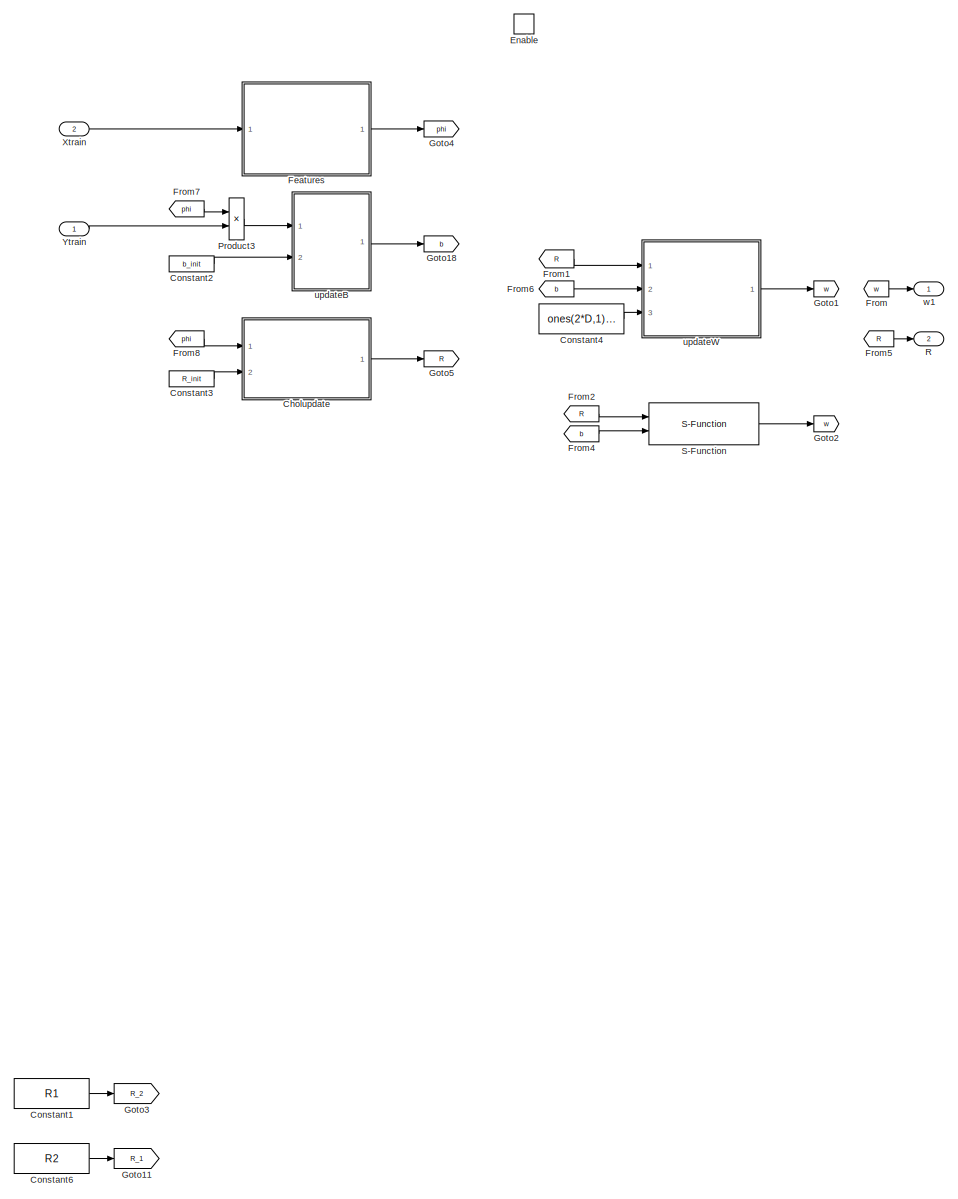
[diagram: Update Posterior - part 1/1, most of the canvas]
BLOCK [SubSystem] Update Posterior
  Ports = [2, 2, 1]
  RequestExecContextInheritance = off
BLOCK [SubSystem] Update Posterior/Cholupdate
  ErrorFcn = Stateflow.Translate.translate
  PermitHierarchicalResolution = ExplicitOnly
  Ports = [2, 1]
  RequestExecContextInheritance = off
  SFBlockType = MATLAB Function
  TreatAsAtomicUnit = on
BLOCK [Demux] Update Posterior/Cholupdate/ Demux 
  Outputs = 1
  Ports = [1, 1]
BLOCK [S-Function] Update Posterior/Cholupdate/ SFunction 
  EnableBusSupport = on
  FunctionName = sf_sfun
  Parameters = D,sn
  PortCounts = [2 2]
  Ports = [2, 2]
  SFcnIsStateOwnerBlock = off
  SFunctionDeploymentMode = off
  Tag = Stateflow S-Function TFlex_ISSGPcopy 6
BLOCK [Terminator] Update Posterior/Cholupdate/ Terminator 
BLOCK [Inport] Update Posterior/Cholupdate/R_init
  IconDisplay = Port number
  Port = 2
BLOCK [Outport] Update Posterior/Cholupdate/R_out
  IconDisplay = Port number
BLOCK [Inport] Update Posterior/Cholupdate/phi
  IconDisplay = Port number
BLOCK [Constant] Update Posterior/Constant1
  Commented = on
  SampleTime = -1
  Value = R1
  VectorParams1D = off
BLOCK [Constant] Update Posterior/Constant2
  SampleTime = -1
  Value = b_init
BLOCK [Constant] Update Posterior/Constant3
  SampleTime = -1
  Value = R_init
BLOCK [Constant] Update Posterior/Constant4
  Commented = on
  SampleTime = ts
  Value = ones(2*D,1).*0.01
BLOCK [Constant] Update Posterior/Constant6
  Commented = on
  SampleTime = -1
  Value = R2
  VectorParams1D = off
BLOCK [EnablePort] Update Posterior/Enable
  Ports = []
BLOCK [SubSystem] Update Posterior/Features
  Ports = [1, 1]
  RequestExecContextInheritance = off
BLOCK [Constant] Update Posterior/Features/Constant1
  SampleTime = -1
  Value = SIGMA
BLOCK [Constant] Update Posterior/Features/Constant2
  SampleTime = -1
  Value = sf
BLOCK [Constant] Update Posterior/Features/Constant6
  SampleTime = -1
  Value = D
BLOCK [Product] Update Posterior/Features/Divide2
  InputSameDT = off
  Inputs = */
  OutDataTypeStr = Inherit: Inherit via internal rule
  Ports = [2, 1]
  RndMeth = Floor
  SaturateOnIntegerOverflow = off
BLOCK [Product] Update Posterior/Features/Product
  InputSameDT = off
  Multiplication = Matrix(*)
  OutDataTypeStr = Inherit: Inherit via internal rule
  Ports = [2, 1]
  RndMeth = Floor
  SaturateOnIntegerOverflow = off
BLOCK [Product] Update Posterior/Features/Product2
  InputSameDT = off
  OutDataTypeStr = Inherit: Inherit via internal rule
  Ports = [2, 1]
  RndMeth = Floor
  SaturateOnIntegerOverflow = off
BLOCK [Sqrt] Update Posterior/Features/Sqrt
BLOCK [Math] Update Posterior/Features/Transpose2
  Operator = transpose
  Ports = [1, 1]
BLOCK [Math] Update Posterior/Features/Transpose3
  Operator = transpose
  Ports = [1, 1]
BLOCK [Math] Update Posterior/Features/Transpose4
  Operator = transpose
  Ports = [1, 1]
BLOCK [Trigonometry] Update Posterior/Features/Trigonometric Function
  Operator = cos
  Ports = [1, 1]
BLOCK [Trigonometry] Update Posterior/Features/Trigonometric Function1
  Ports = [1, 1]
BLOCK [Concatenate] Update Posterior/Features/Vector Concatenate1
  Ports = [2, 1]
BLOCK [Outport] Update Posterior/Features/phi_out
  IconDisplay = Port number
BLOCK [Inport] Update Posterior/Features/x
  IconDisplay = Port number
BLOCK [From] Update Posterior/From
  GotoTag = w
BLOCK [From] Update Posterior/From1
  Commented = on
  GotoTag = R
BLOCK [From] Update Posterior/From2
  GotoTag = R
BLOCK [From] Update Posterior/From4
  GotoTag = b
BLOCK [From] Update Posterior/From5
  GotoTag = R
BLOCK [From] Update Posterior/From6
  Commented = on
  GotoTag = b
BLOCK [From] Update Posterior/From7
  GotoTag = phi
BLOCK [From] Update Posterior/From8
  GotoTag = phi
BLOCK [Goto] Update Posterior/Goto1
  Commented = on
  GotoTag = w
BLOCK [Goto] Update Posterior/Goto11
  Commented = on
  GotoTag = R_1
BLOCK [Goto] Update Posterior/Goto18
  GotoTag = b
BLOCK [Goto] Update Posterior/Goto2
  GotoTag = w
BLOCK [Goto] Update Posterior/Goto3
  Commented = on
  GotoTag = R_2
BLOCK [Goto] Update Posterior/Goto4
  GotoTag = phi
BLOCK [Goto] Update Posterior/Goto5
  GotoTag = R
BLOCK [Product] Update Posterior/Product3
  InputSameDT = off
  OutDataTypeStr = Inherit: Inherit via internal rule
  Ports = [2, 1]
  RndMeth = Floor
  SaturateOnIntegerOverflow = off
BLOCK [Outport] Update Posterior/R
  IconDisplay = Port number
  Port = 2
BLOCK [S-Function] Update Posterior/S-Function
  EnableBusSupport = off
  FunctionName = solve_chol_sfun
  Parameters = 2*D
  Ports = [2, 1]
  SFcnIsStateOwnerBlock = off
  SFunctionDeploymentMode = off
BLOCK [Inport] Update Posterior/Xtrain
  IconDisplay = Port number
  Port = 2
  PortDimensions = [n,1]
BLOCK [Inport] Update Posterior/Ytrain
  IconDisplay = Port number
  PortDimensions = [1,1]
BLOCK [SubSystem] Update Posterior/updateB
  ErrorFcn = Stateflow.Translate.translate
  PermitHierarchicalResolution = ExplicitOnly
  Ports = [2, 1]
  RequestExecContextInheritance = off
  SFBlockType = MATLAB Function
  TreatAsAtomicUnit = on
BLOCK [Demux] Update Posterior/updateB/ Demux 
  Outputs = 1
  Ports = [1, 1]
BLOCK [S-Function] Update Posterior/updateB/ SFunction 
  EnableBusSupport = on
  FunctionName = sf_sfun
  Parameters = D
  PortCounts = [2 2]
  Ports = [2, 2]
  SFcnIsStateOwnerBlock = off
  SFunctionDeploymentMode = off
  Tag = Stateflow S-Function TFlex_ISSGPcopy 8
BLOCK [Terminator] Update Posterior/updateB/ Terminator 
BLOCK [Inport] Update Posterior/updateB/b_init
  IconDisplay = Port number
  Port = 2
BLOCK [Outport] Update Posterior/updateB/b_out
  IconDisplay = Port number
BLOCK [Inport] Update Posterior/updateB/update
  IconDisplay = Port number
BLOCK [SubSystem] Update Posterior/updateW
  Commented = on
  ErrorFcn = Stateflow.Translate.translate
  PermitHierarchicalResolution = ExplicitOnly
  Ports = [3, 1]
  RequestExecContextInheritance = off
  SFBlockType = MATLAB Function
  TreatAsAtomicUnit = on
BLOCK [Demux] Update Posterior/updateW/ Demux 
  Outputs = 1
  Ports = [1, 1]
BLOCK [S-Function] Update Posterior/updateW/ SFunction 
  EnableBusSupport = on
  FunctionName = sf_sfun
  Parameters = D
  PortCounts = [3 2]
  Ports = [3, 2]
  SFcnIsStateOwnerBlock = off
  SFunctionDeploymentMode = off
  Tag = Stateflow S-Function TFlex_ISSGPcopy 4
BLOCK [Terminator] Update Posterior/updateW/ Terminator 
BLOCK [Inport] Update Posterior/updateW/R
  IconDisplay = Port number
BLOCK [Inport] Update Posterior/updateW/b
  IconDisplay = Port number
  Port = 2
BLOCK [Inport] Update Posterior/updateW/w_init
  IconDisplay = Port number
  Port = 3
BLOCK [Outport] Update Posterior/updateW/w_out
  IconDisplay = Port number
BLOCK [Outport] Update Posterior/w1
  IconDisplay = Port number
BLOCK [Scope] control Output
  Floating = off
  NumInputPorts = 4
  Ports = [4]
  ScopeSpecificationString = Simulink.scopes.TimeScopeBlockCfg('CurrentConfiguration', extmgr.ConfigurationSet(extmgr.Configuration('Core','General UI',true),extmgr.Configuration('Core','Source UI',true),extmgr.Configuration('Sources','WiredSimulink',true,'DataLoggingVariableName','ScopeData3'),extmgr.Configuration('Visuals','Time Domain',true,'SerializedDisplays',{struct('MinYLimReal','-135.40394','MaxYLimReal','178.23053','...<+3537ch>
BLOCK [Scope] crossover
  Floating = off
  NumInputPorts = 1
  Ports = [1]
  ScopeSpecificationString = Simulink.scopes.TimeScopeBlockCfg('CurrentConfiguration', extmgr.ConfigurationSet(extmgr.Configuration('Core','General UI',true),extmgr.Configuration('Core','Source UI',true),extmgr.Configuration('Sources','WiredSimulink',true,'DataLoggingVariableName','ScopeData2'),extmgr.Configuration('Visuals','Time Domain',true,'SerializedDisplays',{struct('MinYLimReal','5.00000','MaxYLimReal','25.00000','YLab...<+1450ch>
BLOCK [Scope] plant output
  Floating = off
  NumInputPorts = 3
  Ports = [3]
  ScopeSpecificationString = Simulink.scopes.TimeScopeBlockCfg('CurrentConfiguration', extmgr.ConfigurationSet(extmgr.Configuration('Core','General UI',true),extmgr.Configuration('Core','Source UI',true),extmgr.Configuration('Sources','WiredSimulink',true,'DataLoggingVariableName','ScopeData5'),extmgr.Configuration('Visuals','Time Domain',true,'SerializedDisplays',{struct('MinYLimReal','-33.18472','MaxYLimReal','29.71189','YL...<+3168ch>
ANNOTATION (root): Feedback Controller
ANNOTATION (root): Plant
ANNOTATION (root): Prediction
ANNOTATION (root): Reference generator
ANNOTATION (root): Scopes & Logging
ANNOTATION (root): Training Data
ANNOTATION (root): Updating posterior
ANNOTATION Adaptive PID: Adaptive PID controller - Parallel form
ANNOTATION Adaptive PID: Controller settings
ANNOTATION Adaptive PID: Parameters parallel form
ANNOTATION Adaptive PID: Parameters serial form
LINE Adaptive PID/Constant1:1 -> Adaptive PID/Goto1:1
LINE Adaptive PID/Constant2:1 -> Adaptive PID/Goto2:1
LINE Adaptive PID/Constant3:1 -> Adaptive PID/Goto3:1
LINE Adaptive PID/Discrete Derivative:1 -> Adaptive PID/Sum2:3
LINE Adaptive PID/Discrete-Time Integrator2:1 -> Adaptive PID/Sum2:1
LINE Adaptive PID/Divide1:1 -> Adaptive PID/Goto5:1
LINE Adaptive PID/Divide2:1 -> Adaptive PID/Goto7:1
LINE Adaptive PID/Divide3:1 -> Adaptive PID/Sum1:1
LINE Adaptive PID/Divide4:1 -> Adaptive PID/Goto9:1
LINE Adaptive PID/Divide5:1 -> Adaptive PID/Sum4:1
LINE Adaptive PID/Divide:1 -> Adaptive PID/Goto4:1
LINE Adaptive PID/From10:1 -> Adaptive PID/Sum:1
LINE Adaptive PID/From11:1 -> Adaptive PID/Sum:2
LINE Adaptive PID/From12:1 -> Adaptive PID/Divide3:2
LINE Adaptive PID/From13:1 -> Adaptive PID/Divide4:1
LINE Adaptive PID/From14:1 -> Adaptive PID/Divide4:2
LINE Adaptive PID/From15:1 -> Adaptive PID/Sum3:1
LINE Adaptive PID/From16:1 -> Adaptive PID/Sum3:2
LINE Adaptive PID/From17:1 -> Adaptive PID/Divide5:2
LINE Adaptive PID/From18:1 -> Adaptive PID/Multiply4:2
LINE Adaptive PID/From19:1 -> Adaptive PID/Sum5:2
LINE Adaptive PID/From1:1 -> Adaptive PID/Multiply:2
LINE Adaptive PID/From20:1 -> Adaptive PID/Multiply5:2
LINE Adaptive PID/From21:1 -> Adaptive PID/Multiply6:1
LINE Adaptive PID/From22:1 -> Adaptive PID/Multiply7:1
LINE Adaptive PID/From23:1 -> Adaptive PID/Multiply8:1
LINE Adaptive PID/From2:1 -> Adaptive PID/Sqrt1:1
LINE Adaptive PID/From3:1 -> Adaptive PID/Sqrt2:1
LINE Adaptive PID/From4:1 -> Adaptive PID/Divide1:2
LINE Adaptive PID/From5:1 -> Adaptive PID/Multiply1:1
LINE Adaptive PID/From6:1 -> Adaptive PID/Multiply1:2
LINE Adaptive PID/From7:1 -> Adaptive PID/Sqrt3:1
LINE Adaptive PID/From8:1 -> Adaptive PID/Multiply2:2
LINE Adaptive PID/From9:1 -> Adaptive PID/Multiply3:2
LINE Adaptive PID/From:1 -> Adaptive PID/Square:1
LINE Adaptive PID/Gain:1 -> Adaptive PID/Goto:1
LINE Adaptive PID/Lowpass:1 -> Adaptive PID/Multiply8:2
LINE Adaptive PID/Multiply1:1 -> Adaptive PID/Goto6:1
LINE Adaptive PID/Multiply2:1 -> Adaptive PID/Divide2:2
LINE Adaptive PID/Multiply3:1 -> Adaptive PID/Goto8:1
LINE Adaptive PID/Multiply4:1 -> Adaptive PID/Sum5:1
LINE Adaptive PID/Multiply5:1 -> Adaptive PID/Goto10:1
LINE Adaptive PID/Multiply6:1 -> Adaptive PID/Discrete-Time Integrator2:1
LINE Adaptive PID/Multiply7:1 -> Adaptive PID/Sum2:2
LINE Adaptive PID/Multiply8:1 -> Adaptive PID/Discrete Derivative:1
LINE Adaptive PID/Multiply:1 -> Adaptive PID/Divide:1
LINE Adaptive PID/One1:1 -> Adaptive PID/Sum1:2
LINE Adaptive PID/One2:1 -> Adaptive PID/Sum4:2
LINE Adaptive PID/One:1 -> Adaptive PID/Divide2:1
LINE Adaptive PID/Sqrt1:1 -> Adaptive PID/Divide:2
LINE Adaptive PID/Sqrt2:1 -> Adaptive PID/Divide1:1
LINE Adaptive PID/Sqrt3:1 -> Adaptive PID/Multiply2:1
LINE Adaptive PID/Square:1 -> Adaptive PID/Multiply:1
LINE Adaptive PID/Sum1:1 -> Adaptive PID/Multiply3:1
LINE Adaptive PID/Sum2:1 -> Adaptive PID/Control output:1
LINE Adaptive PID/Sum3:1 -> Adaptive PID/Divide5:1
LINE Adaptive PID/Sum4:1 -> Adaptive PID/Multiply4:1
LINE Adaptive PID/Sum5:1 -> Adaptive PID/Multiply5:1
LINE Adaptive PID/Sum:1 -> Adaptive PID/Divide3:1
NET Adaptive PID/e:1 -> Adaptive PID/Lowpass:1, Adaptive PID/Multiply6:2, Adaptive PID/Multiply7:2
LINE Adaptive PID/w_c [hz]:1 -> Adaptive PID/Gain:1
NET Adaptive PID:1 -> Goto8:1, Sum11:2
LINE Bus Selector1:1 -> Sum:1
LINE Bus Selector4:1 -> plant output:1
LINE Bus Selector4:2 -> plant output:2
LINE Bus Selector4:3 -> plant output:3
LINE Bus Selector5:1 -> Setpoint:1
LINE Bus Selector5:2 -> Setpoint:2
LINE Bus Selector5:3 -> Setpoint:3
LINE Constant4:1 -> Multiport Switch:1
LINE Constant8:1 -> Multiport Switch:2
LINE Delay2:1 -> IC1:1
LINE Delay3:1 -> Sum:2
LINE Delay4:1 -> Manual Switch:1
LINE Delay5:1 -> Manual Switch:2
LINE Delay:1 -> IC:1
LINE From13:1 -> To Workspace2:1
LINE From14:1 -> To Workspace5:1
LINE From15:1 -> To Workspace6:1
LINE From17:1 -> Bus Selector5:1
LINE From18:1 -> To Workspace9:1
LINE From19:1 -> To Workspace11:1
LINE From1:1 -> Update Posterior:2
LINE From20:1 -> Bus Selector4:1
LINE From21:1 -> To Workspace4:1
LINE From22:1 -> Gain2:1
LINE From23:1 -> Delay5:1
LINE From24:1 -> Gain3:1
LINE From26:1 -> control Output:2
LINE From27:1 -> control Output:3
LINE From28:1 -> control Output:1
LINE From2:1 -> Update Posterior:1
LINE From32:1 -> control Output:4
LINE From37:1 -> Delay4:1
LINE From39:1 -> I-SSGP Predictions:2
LINE From3:1 -> crossover:1
LINE From40:1 -> To Workspace7:1
LINE From:1 -> I-SSGP Predictions:1
LINE Gain2:1 -> To Workspace3:1
LINE Gain3:1 -> To Workspace1:1
LINE Gain:1 -> Sum5:1
LINE I-SSGP Predictions/Constant3:1 -> I-SSGP Predictions/Square:1
LINE I-SSGP Predictions/Discrete-Time Integrator:1 -> I-SSGP Predictions/Saturation1:1
LINE I-SSGP Predictions/Dot Product1:1 -> I-SSGP Predictions/Sum:1
LINE I-SSGP Predictions/Dot Product:1 -> I-SSGP Predictions/Product1:2
NET I-SSGP Predictions/LAPACK solver:1 -> I-SSGP Predictions/Dot Product1:1, I-SSGP Predictions/Dot Product1:2
LINE I-SSGP Predictions/Multiply:1 -> I-SSGP Predictions/Variance:1
LINE I-SSGP Predictions/One:1 -> I-SSGP Predictions/Sum:2
LINE I-SSGP Predictions/Product1:1 -> I-SSGP Predictions/FF_SSGP:1
LINE I-SSGP Predictions/R:1 -> I-SSGP Predictions/Transpose:1
LINE I-SSGP Predictions/Saturation1:1 -> I-SSGP Predictions/Product1:1
LINE I-SSGP Predictions/Square:1 -> I-SSGP Predictions/Multiply:2
LINE I-SSGP Predictions/Step:1 -> I-SSGP Predictions/slope:1
LINE I-SSGP Predictions/Subsystem/Constant1:1 -> I-SSGP Predictions/Subsystem/Product:1
LINE I-SSGP Predictions/Subsystem/Constant2:1 -> I-SSGP Predictions/Subsystem/Divide2:1
LINE I-SSGP Predictions/Subsystem/Constant3:1 -> I-SSGP Predictions/Subsystem/Sqrt:1
LINE I-SSGP Predictions/Subsystem/Divide2:1 -> I-SSGP Predictions/Subsystem/Product2:1
LINE I-SSGP Predictions/Subsystem/Product2:1 -> I-SSGP Predictions/Subsystem/phi:1
NET I-SSGP Predictions/Subsystem/Product:1 -> I-SSGP Predictions/Subsystem/Trigonometric Function1:1, I-SSGP Predictions/Subsystem/Trigonometric Function:1
LINE I-SSGP Predictions/Subsystem/Sqrt:1 -> I-SSGP Predictions/Subsystem/Divide2:2
LINE I-SSGP Predictions/Subsystem/Transpose2:1 -> I-SSGP Predictions/Subsystem/Vector Concatenate1:1
LINE I-SSGP Predictions/Subsystem/Transpose3:1 -> I-SSGP Predictions/Subsystem/Vector Concatenate1:2
LINE I-SSGP Predictions/Subsystem/Transpose4:1 -> I-SSGP Predictions/Subsystem/Product2:2
LINE I-SSGP Predictions/Subsystem/Trigonometric Function1:1 -> I-SSGP Predictions/Subsystem/Transpose3:1
LINE I-SSGP Predictions/Subsystem/Trigonometric Function:1 -> I-SSGP Predictions/Subsystem/Transpose2:1
LINE I-SSGP Predictions/Subsystem/Vector Concatenate1:1 -> I-SSGP Predictions/Subsystem/Transpose4:1
LINE I-SSGP Predictions/Subsystem/r:1 -> I-SSGP Predictions/Subsystem/Product:2
NET I-SSGP Predictions/Subsystem:1 -> I-SSGP Predictions/Dot Product:2, I-SSGP Predictions/LAPACK solver:2
LINE I-SSGP Predictions/Sum:1 -> I-SSGP Predictions/Multiply:1
LINE I-SSGP Predictions/Transpose:1 -> I-SSGP Predictions/LAPACK solver:1
LINE I-SSGP Predictions/ref:1 -> I-SSGP Predictions/Subsystem:1
LINE I-SSGP Predictions/slope:1 -> I-SSGP Predictions/Discrete-Time Integrator:1
LINE I-SSGP Predictions/w:1 -> I-SSGP Predictions/Dot Product:1
NET I-SSGP Predictions:1 -> Goto1:1, Sum11:1
LINE I-SSGP Predictions:2 -> Sum5:2
LINE IC1:1 -> Goto20:1
LINE IC:1 -> Goto:1
LINE MATLAB Function:1 -> Sum1:1
LINE Manual Switch:1 -> State Variable filter1:1
LINE Min. Crossover:1 -> Sum1:2
NET Multiport Switch:1 -> Skewsine Setpoint Generator:1, Transient profile generator :1
LINE One1:1 -> Sum4:1
LINE Pulse Generator2:1 -> Sum3:1
NET Quantification:1 -> Setpoint current [mA]:1, Tflex manipulator:1
NET Saturation1:1 -> Adaptive PID:1, Goto21:1
LINE Saturation:1 -> Quantification:1
LINE Skewsine Setpoint Generator/Bus Creator:1 -> Skewsine Setpoint Generator/ref:1
LINE Skewsine Setpoint Generator/Setpoint:1 -> Skewsine Setpoint Generator/Subsystem:1
LINE Skewsine Setpoint Generator/Subsystem/Clock:1 -> Skewsine Setpoint Generator/Subsystem/Sum6:3
LINE Skewsine Setpoint Generator/Subsystem/Constant1:1 -> Skewsine Setpoint Generator/Subsystem/Sum6:1
LINE Skewsine Setpoint Generator/Subsystem/Constant2:1 -> Skewsine Setpoint Generator/Subsystem/MATLAB Function:2
LINE Skewsine Setpoint Generator/Subsystem/Constant:1 -> Skewsine Setpoint Generator/Subsystem/Sum5:2
LINE Skewsine Setpoint Generator/Subsystem/Delay4:1 -> Skewsine Setpoint Generator/Subsystem/Sum5:1
LINE Skewsine Setpoint Generator/Subsystem/Delay:1 -> Skewsine Setpoint Generator/Subsystem/Sum:1
LINE Skewsine Setpoint Generator/Subsystem/Gain:1 -> Skewsine Setpoint Generator/Subsystem/Sum6:2
LINE Skewsine Setpoint Generator/Subsystem/MATLAB Function:1 -> Skewsine Setpoint Generator/Subsystem/Sum2:2
LINE Skewsine Setpoint Generator/Subsystem/MATLAB Function:2 -> Skewsine Setpoint Generator/Subsystem/r_dot:1
LINE Skewsine Setpoint Generator/Subsystem/MATLAB Function:3 -> Skewsine Setpoint Generator/Subsystem/r_ddot:1
LINE Skewsine Setpoint Generator/Subsystem/Rate Transition:1 -> Skewsine Setpoint Generator/Subsystem/Sum2:1
NET Skewsine Setpoint Generator/Subsystem/Sum2:1 -> Skewsine Setpoint Generator/Subsystem/Scope:2, Skewsine Setpoint Generator/Subsystem/r:1
NET Skewsine Setpoint Generator/Subsystem/Sum5:1 -> Skewsine Setpoint Generator/Subsystem/Delay4:1, Skewsine Setpoint Generator/Subsystem/Gain:1
LINE Skewsine Setpoint Generator/Subsystem/Sum6:1 -> Skewsine Setpoint Generator/Subsystem/MATLAB Function:3
LINE Skewsine Setpoint Generator/Subsystem/Sum:1 -> Skewsine Setpoint Generator/Subsystem/MATLAB Function:1
NET Skewsine Setpoint Generator/Subsystem/setpoint:1 -> Skewsine Setpoint Generator/Subsystem/Delay:1, Skewsine Setpoint Generator/Subsystem/Rate Transition:1, Skewsine Setpoint Generator/Subsystem/Scope:1, Skewsine Setpoint Generator/Subsystem/Sum:2
LINE Skewsine Setpoint Generator/Subsystem:1 -> Skewsine Setpoint Generator/Bus Creator:1
LINE Skewsine Setpoint Generator/Subsystem:2 -> Skewsine Setpoint Generator/Bus Creator:2
LINE Skewsine Setpoint Generator/Subsystem:3 -> Skewsine Setpoint Generator/Bus Creator:3
NET Skewsine Setpoint Generator:1 -> Bus Selector1:1, Goto4:1, I-SSGP Predictions:3
LINE State Variable filter/Angle [deg]:1 -> State Variable filter/Sum:1
LINE State Variable filter/Bus Creator:1 -> State Variable filter/Filtered state [deg]:1
NET State Variable filter/Discrete-Time Integrator1:1 -> State Variable filter/Discrete-Time Integrator2:1, State Variable filter/Gain1:1, State Variable filter/Gain4:1
NET State Variable filter/Discrete-Time Integrator2:1 -> State Variable filter/Gain3:1, State Variable filter/Gain:1
NET State Variable filter/Discrete-Time Integrator:1 -> State Variable filter/Discrete-Time Integrator1:1, State Variable filter/Gain2:1, State Variable filter/Gain5:1
LINE State Variable filter/Gain1:1 -> State Variable filter/Sum5:2
NET State Variable filter/Gain2:1 -> State Variable filter/Bus Creator:3, State Variable filter/State SVF:3
NET State Variable filter/Gain3:1 -> State Variable filter/Bus Creator:1, State Variable filter/State SVF:1
NET State Variable filter/Gain4:1 -> State Variable filter/Bus Creator:2, State Variable filter/State SVF:2
LINE State Variable filter/Gain5:1 -> State Variable filter/Sum1:2
LINE State Variable filter/Gain:1 -> State Variable filter/Sum:2
LINE State Variable filter/Sum1:1 -> State Variable filter/Discrete-Time Integrator:1
LINE State Variable filter/Sum5:1 -> State Variable filter/Sum1:1
LINE State Variable filter/Sum:1 -> State Variable filter/Sum5:1
LINE State Variable filter1/Current [mA]:1 -> State Variable filter1/Sum:1
NET State Variable filter1/Discrete-Time Integrator1:1 -> State Variable filter1/Discrete-Time Integrator2:1, State Variable filter1/Gain1:1
NET State Variable filter1/Discrete-Time Integrator2:1 -> State Variable filter1/Gain3:1, State Variable filter1/Gain:1
NET State Variable filter1/Discrete-Time Integrator:1 -> State Variable filter1/Discrete-Time Integrator1:1, State Variable filter1/Gain5:1
LINE State Variable filter1/Gain1:1 -> State Variable filter1/Sum5:2
LINE State Variable filter1/Gain3:1 -> State Variable filter1/Filtered Current [mA]:1
LINE State Variable filter1/Gain5:1 -> State Variable filter1/Sum1:2
LINE State Variable filter1/Gain:1 -> State Variable filter1/Sum:2
LINE State Variable filter1/Sum1:1 -> State Variable filter1/Discrete-Time Integrator:1
LINE State Variable filter1/Sum5:1 -> State Variable filter1/Sum1:1
LINE State Variable filter1/Sum:1 -> State Variable filter1/Sum5:1
LINE State Variable filter1:1 -> Goto3:1
LINE State Variable filter:1 -> Goto6:1
LINE Step1:1 -> Update Posterior:enable
LINE Step9:1 -> Sum3:2
NET Step:1 -> I-SSGP Predictions:enable, Sum4:2
LINE Sum11:1 -> Saturation:1
LINE Sum1:1 -> Saturation1:1
LINE Sum3:1 -> Multiport Switch:4
LINE Sum4:1 -> Gain:1
LINE Sum5:1 -> MATLAB Function:1
NET Sum:1 -> Adaptive PID:2, Goto9:1
LINE Tflex manipulator/Cogging/Angle [rad]:1 -> Tflex manipulator/Cogging/Sine Wave Function:1
LINE Tflex manipulator/Cogging/Sine Wave Function:1 -> Tflex manipulator/Cogging/Sum of Elements:1
LINE Tflex manipulator/Cogging/Sum of Elements:1 -> Tflex manipulator/Cogging/[mA]:1
LINE Tflex manipulator/Cogging:1 -> Tflex manipulator/Sum6:2
LINE Tflex manipulator/Encoder noise:1 -> Tflex manipulator/Sum8:1
LINE Tflex manipulator/Gravity:1 -> Tflex manipulator/Sum12:2
LINE Tflex manipulator/Hysteresis/Angle [rad]:1 -> Tflex manipulator/Hysteresis/Discrete Derivative:1
NET Tflex manipulator/Hysteresis/Discrete Derivative:1 -> Tflex manipulator/Hysteresis/MATLAB Function:1, Tflex manipulator/Hysteresis/Sum1:1
NET Tflex manipulator/Hysteresis/Discrete-Time Integrator:1 -> Tflex manipulator/Hysteresis/Hysteresis.gain:1, Tflex manipulator/Hysteresis/MATLAB Function:3
LINE Tflex manipulator/Hysteresis/Hysteresis.gain:1 -> Tflex manipulator/Hysteresis/[mA]:1
LINE Tflex manipulator/Hysteresis/MATLAB Function:1 -> Tflex manipulator/Hysteresis/Sum1:2
LINE Tflex manipulator/Hysteresis/Sum1:1 -> Tflex manipulator/Hysteresis/Discrete-Time Integrator:1
LINE Tflex manipulator/Hysteresis/p0:1 -> Tflex manipulator/Hysteresis/MATLAB Function:2
LINE Tflex manipulator/Hysteresis:1 -> Tflex manipulator/Sum12:1
LINE Tflex manipulator/Input delay:1 -> Tflex manipulator/Sum7:1
LINE Tflex manipulator/Input noise/Angle [rad]:1 -> Tflex manipulator/Input noise/Noise variance:1
LINE Tflex manipulator/Input noise/Band-Limited White Noise:1 -> Tflex manipulator/Input noise/Multiply2:1
LINE Tflex manipulator/Input noise/Multiply2:1 -> Tflex manipulator/Input noise/[mA]:1
LINE Tflex manipulator/Input noise/Noise variance:1 -> Tflex manipulator/Input noise/Multiply2:2
LINE Tflex manipulator/Input noise:1 -> Tflex manipulator/Sum7:2
LINE Tflex manipulator/Ouput delay:1 -> Tflex manipulator/Angle [deg]:1
NET Tflex manipulator/Rate Transition:1 -> Tflex manipulator/Hysteresis:1, Tflex manipulator/Sum8:2, Tflex manipulator/deg2rad1:1, Tflex manipulator/deg2rad2:1, Tflex manipulator/deg2rad:1
LINE Tflex manipulator/Setpoint Current [mA]:1 -> Tflex manipulator/Input delay:1
LINE Tflex manipulator/Sum10:1 -> Tflex manipulator/TFlex:1
LINE Tflex manipulator/Sum12:1 -> Tflex manipulator/Sum6:1
LINE Tflex manipulator/Sum6:1 -> Tflex manipulator/Sum10:2
NET Tflex manipulator/Sum7:1 -> Tflex manipulator/Actual Current [mA]:1, Tflex manipulator/Sum10:1
LINE Tflex manipulator/Sum8:1 -> Tflex manipulator/Ouput delay:1
LINE Tflex manipulator/TFlex:1 -> Tflex manipulator/Rate Transition:1
LINE Tflex manipulator/deg2rad1:1 -> Tflex manipulator/Gravity:1
LINE Tflex manipulator/deg2rad2:1 -> Tflex manipulator/Cogging:1
LINE Tflex manipulator/deg2rad:1 -> Tflex manipulator/Input noise:1
LINE Tflex manipulator:1 -> Actual current [mA]:1
NET Tflex manipulator:2 -> Delay3:1, Goto2:1, State Variable filter:1
LINE Transient profile generator /Bus Creator:1 -> Transient profile generator /ref:1
LINE Transient profile generator /Constant1:1 -> Transient profile generator /MATLAB Function2:4
LINE Transient profile generator /Constant:1 -> Transient profile generator /MATLAB Function2:3
NET Transient profile generator /Discrete-Time Integrator1:1 -> Transient profile generator /Bus Creator:1, Transient profile generator /Scope:1, Transient profile generator /Sum:1
NET Transient profile generator /Discrete-Time Integrator:1 -> Transient profile generator /Bus Creator:2, Transient profile generator /Discrete-Time Integrator1:1, Transient profile generator /MATLAB Function2:2, Transient profile generator /Scope:2
NET Transient profile generator /MATLAB Function2:1 -> Transient profile generator /Bus Creator:3, Transient profile generator /Discrete-Time Integrator:1, Transient profile generator /Scope:3
LINE Transient profile generator /Setpoint:1 -> Transient profile generator /Sum:2
LINE Transient profile generator /Sum:1 -> Transient profile generator /MATLAB Function2:1
LINE Uniform Random Number1:1 -> Multiport Switch:3
LINE Update Posterior/Cholupdate:1 -> Update Posterior/Goto5:1
LINE Update Posterior/Constant1:1 -> Update Posterior/Goto3:1
LINE Update Posterior/Constant2:1 -> Update Posterior/updateB:2
LINE Update Posterior/Constant3:1 -> Update Posterior/Cholupdate:2
LINE Update Posterior/Constant4:1 -> Update Posterior/updateW:3
LINE Update Posterior/Constant6:1 -> Update Posterior/Goto11:1
LINE Update Posterior/Features/Constant1:1 -> Update Posterior/Features/Product:1
LINE Update Posterior/Features/Constant2:1 -> Update Posterior/Features/Divide2:1
LINE Update Posterior/Features/Constant6:1 -> Update Posterior/Features/Sqrt:1
LINE Update Posterior/Features/Divide2:1 -> Update Posterior/Features/Product2:1
LINE Update Posterior/Features/Product2:1 -> Update Posterior/Features/phi_out:1
NET Update Posterior/Features/Product:1 -> Update Posterior/Features/Trigonometric Function1:1, Update Posterior/Features/Trigonometric Function:1
LINE Update Posterior/Features/Sqrt:1 -> Update Posterior/Features/Divide2:2
LINE Update Posterior/Features/Transpose2:1 -> Update Posterior/Features/Vector Concatenate1:1
LINE Update Posterior/Features/Transpose3:1 -> Update Posterior/Features/Vector Concatenate1:2
LINE Update Posterior/Features/Transpose4:1 -> Update Posterior/Features/Product2:2
LINE Update Posterior/Features/Trigonometric Function1:1 -> Update Posterior/Features/Transpose3:1
LINE Update Posterior/Features/Trigonometric Function:1 -> Update Posterior/Features/Transpose2:1
LINE Update Posterior/Features/Vector Concatenate1:1 -> Update Posterior/Features/Transpose4:1
LINE Update Posterior/Features/x:1 -> Update Posterior/Features/Product:2
LINE Update Posterior/Features:1 -> Update Posterior/Goto4:1
LINE Update Posterior/From1:1 -> Update Posterior/updateW:1
LINE Update Posterior/From2:1 -> Update Posterior/S-Function:1
LINE Update Posterior/From4:1 -> Update Posterior/S-Function:2
LINE Update Posterior/From5:1 -> Update Posterior/R:1
LINE Update Posterior/From6:1 -> Update Posterior/updateW:2
LINE Update Posterior/From7:1 -> Update Posterior/Product3:1
LINE Update Posterior/From8:1 -> Update Posterior/Cholupdate:1
LINE Update Posterior/From:1 -> Update Posterior/w1:1
LINE Update Posterior/Product3:1 -> Update Posterior/updateB:1
LINE Update Posterior/S-Function:1 -> Update Posterior/Goto2:1
LINE Update Posterior/Xtrain:1 -> Update Posterior/Features:1
LINE Update Posterior/Ytrain:1 -> Update Posterior/Product3:2
LINE Update Posterior/updateB:1 -> Update Posterior/Goto18:1
LINE Update Posterior/updateW:1 -> Update Posterior/Goto1:1
LINE Update Posterior:1 -> Delay:1
LINE Update Posterior:2 -> Delay2:1
note: NET lines group one-source signal fan-out (src -> all destinations, sorted); 1:1 wires keep LINE
CHART Skewsine Setpoint Generator/Subsystem/MATLAB Function states=1 transitions=1
  STATE_LABEL 'eML_blk_kernel()'
  STATE_LABEL 'SCRIPT:\nfunction [x,x_dot,x_ddot] = skewSine(hm,tm,t)\n\nif (t>=0) && (t<=tm)\n    x      = hm/tm*t - hm/(2*pi)*sin(2*pi/tm*t);\n    x_dot  = hm/tm - hm/tm*cos(2*pi/tm*t);\n    x_ddot = 2*pi*hm/(tm^2)*sin(2*pi/tm*t);\nelse\n    x      = hm;\n    x_dot  = 0;\n    x_ddot = 0;\nend\n\n'
CHART Update Posterior/updateW states=1 transitions=1
  STATE_LABEL 'eML_blk_kernel()'
  STATE_LABEL "SCRIPT:\nfunction w_out = updateW(R,b,w_init,D) \npersistent w\nif(isempty(w))\n    w = w_init;\nend\ncoder.extrinsic('solve_chol');\nw = solve_chol(R,b);\n%w = R\\(R'\\b);\nw_out = w;\n"
CHART Tflex manipulator/Hysteresis/MATLAB Function states=1 transitions=1
  STATE_LABEL 'eML_blk_kernel()'
  STATE_LABEL 'SCRIPT:\nfunction y = fcn(Vr,p0,p)\nif Vr>0 && p>=p0\n    y = Vr;\nelseif Vr<0 && p<=-p0\n    y = Vr;\nelse\n    y = 0;\nend\n'
CHART Update Posterior/Cholupdate states=1 transitions=1
  STATE_LABEL 'eML_blk_kernel()'
  STATE_LABEL 'SCRIPT:\nfunction R_out = cholupdate_fcn(phi, R_init, D, sn)\npersistent R; \nif(isempty(R))\n    R = R_init;\nend\nR = cholupdate(R,phi);\nR_out = R;'
CHART Transient profile generator /MATLAB Function2 states=1 transitions=1
  STATE_LABEL 'eML_blk_kernel()'
  STATE_LABEL 'SCRIPT:\nfunction output = Fhan(v1,v2,r0, h0)\nd = h0^2*r0;\na0 = h0*v2;\ny = v1 + a0;\na1 = sqrt(d*(d+8*abs(y)));\na2 = a0 + sign(y)*(a1-d)/2;\nsy = (sign(y+d)-sign(y-d))/2;\na = (a0+y-a2)*sy +a2;\nsa = (sign(a+d)-sign(a-d))/2;\noutput = -r0 *(a/d -sign(a) )*sa - r0*sign(a);\n'
CHART Update Posterior/updateB states=1 transitions=1
  STATE_LABEL 'eML_blk_kernel()'
  STATE_LABEL 'SCRIPT:\nfunction b_out = updateB(update, b_init, D)\npersistent b \nif(isempty(b))\n    b = b_init;\nend\n\nb = b + update;\nb_out = b;\n'
CHART MATLAB Function states=1 transitions=1
  STATE_LABEL 'eML_blk_kernel()'
  STATE_LABEL 'SCRIPT:\nfunction crossover  = variableCrossover(variance, sn, PID)\ncrossoverMax = 20;\ncrossoverMin = PID.crossOver/(2*pi);\n\nz = (variance-sn.^2)*100;\nz = min([z,1]);\n\ncrossover = z*(crossoverMax-crossoverMin);'
